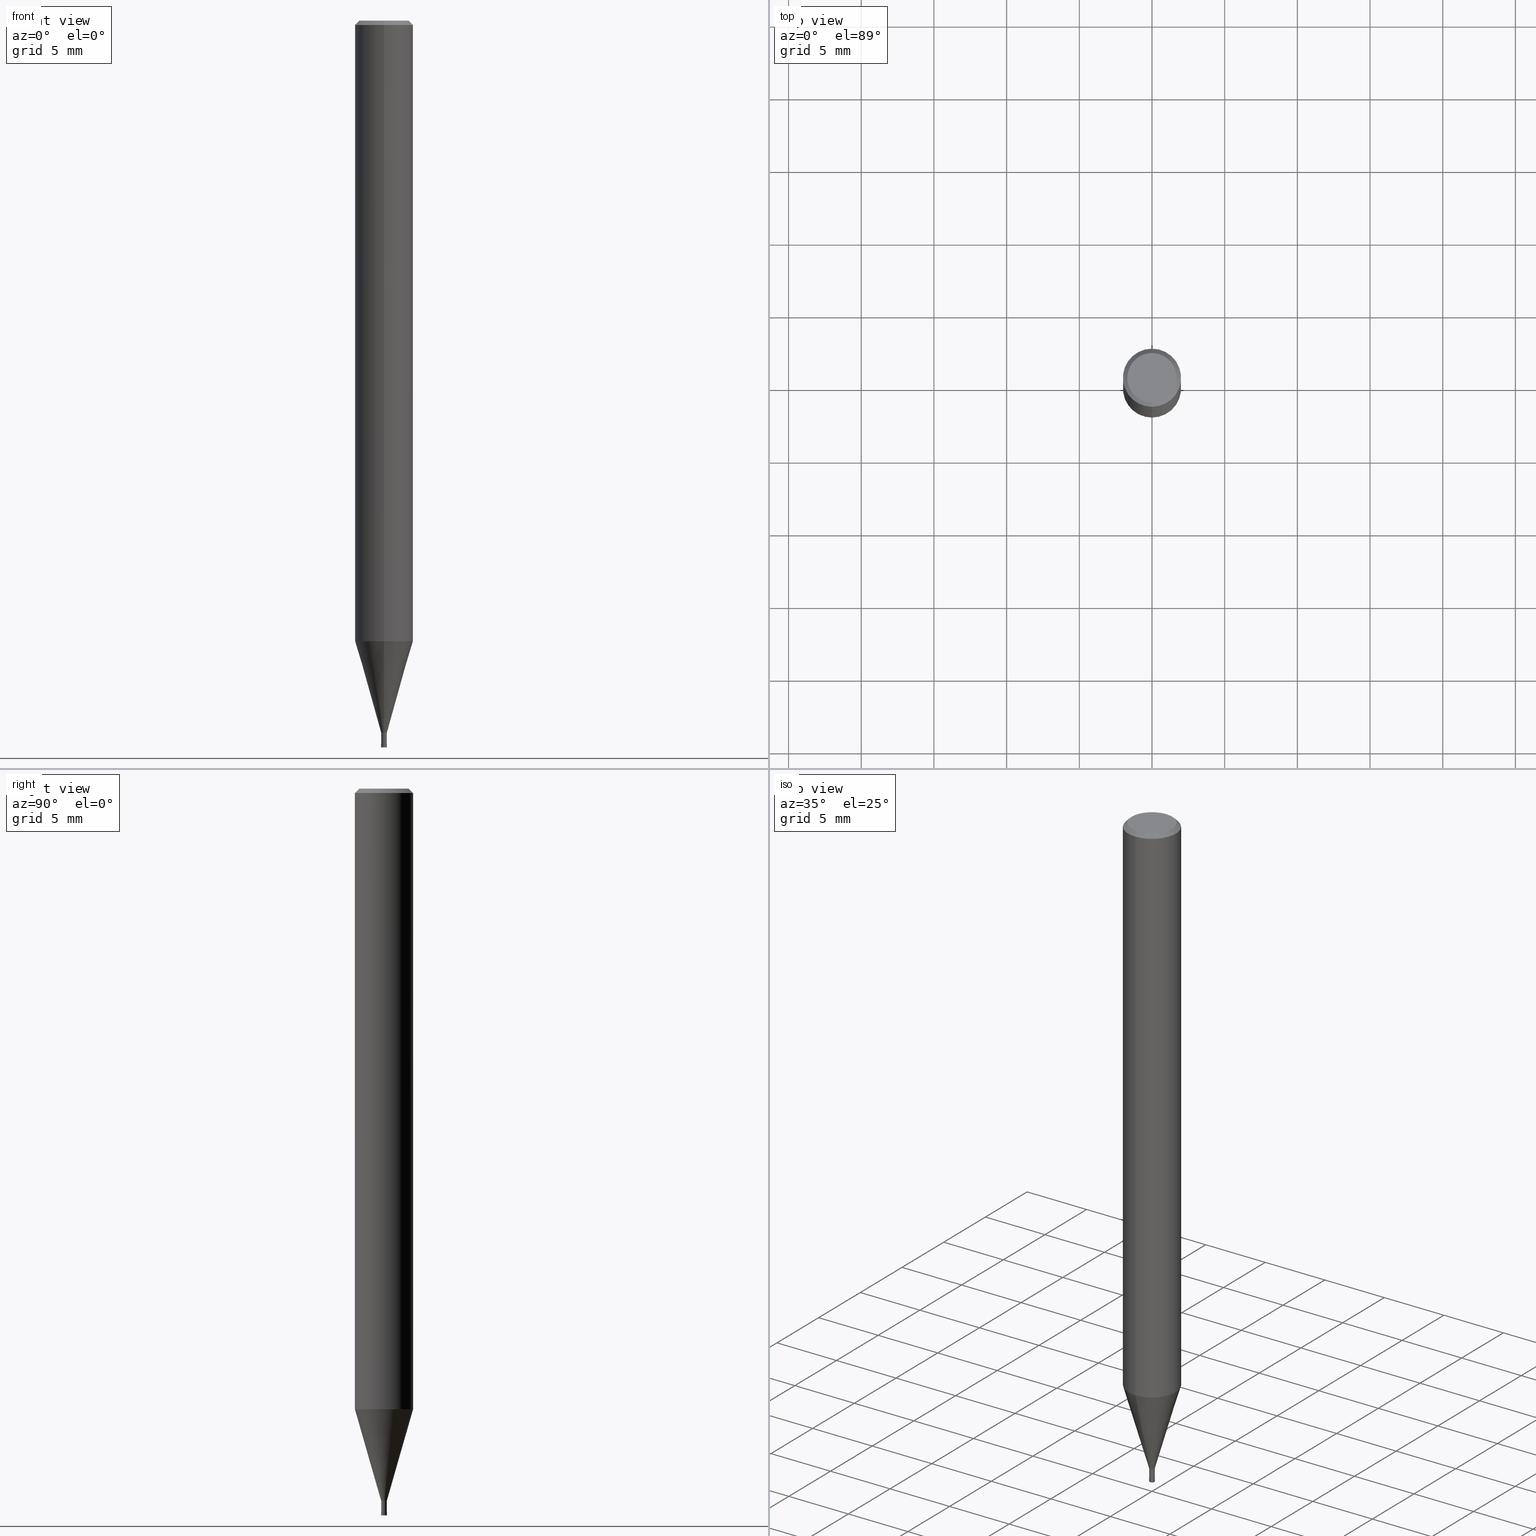
[diagram: canonical four-view strip — front | top / right | iso, engineering-drawing reading convention]
A machine part, canonical four-view strip (front | top / right | iso — engineering-drawing reading convention). The complete STEP part file that produces these views, byte-faithful:
ISO-10303-21;
HEADER;
FILE_DESCRIPTION(('no description'),'unknown implementation level');
FILE_NAME('HLRS4004-002-010-Huellk.stp','  ',('CIMSOURCE GmbH'),('CADClick - KiM GmbH - www.kimweb.de'),'unknown preprocess','ACIS','unknown authorization');
FILE_SCHEMA(('automotive_design'));
ENDSEC;
DATA;
#1=MECHANICAL_DESIGN_GEOMETRIC_PRESENTATION_REPRESENTATION(' ',(#14,#15,#16,#17,#18,#19,#20,#21,#22,#23,#24,#25,#26,#27,#28,#29,#30,#31,#32,#33,#34,#35,#36,#37,#38,#39,#40,#41,#42,#43,#44,#45,#46,#47,#48,#49,#50,#51,#52,#53,#54,#55,#56,#57,#58,#59,#60,#61,#62,#63,#64,#65,#66,#67,#68,#69,#70,#71,#72,#73,#74,#75,#76,#77,#78,#79,#80,#81,#82,#83,#84,#85,#86,#87,#88,#89,#90,#91,#92,#93,#94,#95,#96,#97,#98,#99,#100,#101,#102,#103,#104,#105,#106,#107,#108,#109,#110,#111,#112,#113,#114,#115,#116,#117,#118,#119,#120,#121),#10);
#2=PRODUCT_DEFINITION_CONTEXT('',#122,'design');
#3=APPLICATION_PROTOCOL_DEFINITION('INTERNATIONAL STANDARD','automotive_design',1994,#122);
#4=PRODUCT_CATEGORY_RELATIONSHIP('NONE','NONE',#123,#124);
#5=SHAPE_DEFINITION_REPRESENTATION(#125,#126);
#6=PRODUCT_DEFINITION_CONTEXT('',#127,'design');
#7=APPLICATION_PROTOCOL_DEFINITION('INTERNATIONAL STANDARD','automotive_design',1994,#127);
#8=PRODUCT_CATEGORY_RELATIONSHIP('NONE','NONE',#128,#129);
#9=SHAPE_DEFINITION_REPRESENTATION(#130,#131);
#10= (GEOMETRIC_REPRESENTATION_CONTEXT(3)GLOBAL_UNCERTAINTY_ASSIGNED_CONTEXT((#134))GLOBAL_UNIT_ASSIGNED_CONTEXT((#136,#137,#138))REPRESENTATION_CONTEXT('NONE','WORKSPACE'));
#14=STYLED_ITEM('',(#140),#141);
#15=STYLED_ITEM('',(#142),#143);
#16=STYLED_ITEM('',(#144),#145);
#17=STYLED_ITEM('',(#146),#147);
#18=STYLED_ITEM('',(#148),#149);
#19=STYLED_ITEM('',(#150),#151);
#20=STYLED_ITEM('',(#152),#153);
#21=STYLED_ITEM('',(#154),#155);
#22=STYLED_ITEM('',(#156),#157);
#23=STYLED_ITEM('',(#158),#159);
#24=STYLED_ITEM('',(#160),#161);
#25=STYLED_ITEM('',(#162),#163);
#26=STYLED_ITEM('',(#164),#165);
#27=STYLED_ITEM('',(#166),#167);
#28=STYLED_ITEM('',(#168),#169);
#29=STYLED_ITEM('',(#170),#171);
#30=STYLED_ITEM('',(#172),#173);
#31=STYLED_ITEM('',(#174),#175);
#32=STYLED_ITEM('',(#176),#177);
#33=STYLED_ITEM('',(#178),#179);
#34=STYLED_ITEM('',(#180),#181);
#35=STYLED_ITEM('',(#182),#183);
#36=STYLED_ITEM('',(#184),#185);
#37=STYLED_ITEM('',(#186),#187);
#38=STYLED_ITEM('',(#188),#189);
#39=STYLED_ITEM('',(#190),#191);
#40=STYLED_ITEM('',(#192),#193);
#41=STYLED_ITEM('',(#194),#195);
#42=STYLED_ITEM('',(#196),#197);
#43=STYLED_ITEM('',(#198),#199);
#44=STYLED_ITEM('',(#200),#201);
#45=STYLED_ITEM('',(#202),#203);
#46=STYLED_ITEM('',(#204),#205);
#47=STYLED_ITEM('',(#206),#207);
#48=STYLED_ITEM('',(#208),#209);
#49=STYLED_ITEM('',(#210),#211);
#50=STYLED_ITEM('',(#212),#213);
#51=STYLED_ITEM('',(#214),#215);
#52=STYLED_ITEM('',(#216),#217);
#53=STYLED_ITEM('',(#218),#219);
#54=STYLED_ITEM('',(#220),#221);
#55=STYLED_ITEM('',(#222),#223);
#56=STYLED_ITEM('',(#224),#225);
#57=STYLED_ITEM('',(#226),#227);
#58=STYLED_ITEM('',(#228),#229);
#59=STYLED_ITEM('',(#230),#231);
#60=STYLED_ITEM('',(#232),#233);
#61=STYLED_ITEM('',(#234),#235);
#62=STYLED_ITEM('',(#236),#237);
#63=STYLED_ITEM('',(#238),#239);
#64=STYLED_ITEM('',(#240),#241);
#65=STYLED_ITEM('',(#242),#243);
#66=STYLED_ITEM('',(#244),#245);
#67=STYLED_ITEM('',(#246),#247);
#68=STYLED_ITEM('',(#248),#249);
#69=STYLED_ITEM('',(#250),#251);
#70=STYLED_ITEM('',(#252),#253);
#71=STYLED_ITEM('',(#254),#255);
#72=STYLED_ITEM('',(#256),#257);
#73=STYLED_ITEM('',(#258),#259);
#74=STYLED_ITEM('',(#260),#261);
#75=STYLED_ITEM('',(#262),#263);
#76=STYLED_ITEM('',(#264),#265);
#77=STYLED_ITEM('',(#266),#267);
#78=STYLED_ITEM('',(#268),#269);
#79=STYLED_ITEM('',(#270),#271);
#80=STYLED_ITEM('',(#272),#273);
#81=STYLED_ITEM('',(#274),#275);
#82=STYLED_ITEM('',(#276),#277);
#83=STYLED_ITEM('',(#278),#279);
#84=STYLED_ITEM('',(#280),#281);
#85=STYLED_ITEM('',(#282),#283);
#86=STYLED_ITEM('',(#284),#285);
#87=STYLED_ITEM('',(#286),#287);
#88=STYLED_ITEM('',(#288),#289);
#89=STYLED_ITEM('',(#290),#291);
#90=STYLED_ITEM('',(#292),#293);
#91=STYLED_ITEM('',(#294),#295);
#92=STYLED_ITEM('',(#296),#297);
#93=STYLED_ITEM('',(#298),#299);
#94=STYLED_ITEM('',(#300),#301);
#95=STYLED_ITEM('',(#302),#303);
#96=STYLED_ITEM('',(#304),#305);
#97=STYLED_ITEM('',(#306),#307);
#98=STYLED_ITEM('',(#308),#309);
#99=STYLED_ITEM('',(#310),#311);
#100=STYLED_ITEM('',(#312),#313);
#101=STYLED_ITEM('',(#314),#315);
#102=STYLED_ITEM('',(#316),#317);
#103=STYLED_ITEM('',(#318),#319);
#104=STYLED_ITEM('',(#320),#321);
#105=STYLED_ITEM('',(#322),#323);
#106=STYLED_ITEM('',(#324),#325);
#107=STYLED_ITEM('',(#326),#327);
#108=STYLED_ITEM('',(#328),#329);
#109=STYLED_ITEM('',(#330),#331);
#110=STYLED_ITEM('',(#332),#333);
#111=STYLED_ITEM('',(#334),#335);
#112=STYLED_ITEM('',(#336),#337);
#113=STYLED_ITEM('',(#338),#339);
#114=STYLED_ITEM('',(#340),#341);
#115=STYLED_ITEM('',(#342),#343);
#116=STYLED_ITEM('',(#344),#345);
#117=STYLED_ITEM('',(#346),#347);
#118=STYLED_ITEM('',(#348),#349);
#119=STYLED_ITEM('',(#350),#351);
#120=STYLED_ITEM('',(#352),#353);
#121=STYLED_ITEM('',(#354),#355);
#122=APPLICATION_CONTEXT(' ');
#123=PRODUCT_CATEGORY('part','NONE');
#124=PRODUCT_RELATED_PRODUCT_CATEGORY('detail',' ',(#356));
#125=PRODUCT_DEFINITION_SHAPE('NONE','NONE',#357);
#126=ADVANCED_BREP_SHAPE_REPRESENTATION('1',(#249,#358),#10);
#127=APPLICATION_CONTEXT(' ');
#128=PRODUCT_CATEGORY('part','NONE');
#129=PRODUCT_RELATED_PRODUCT_CATEGORY('detail',' ',(#359));
#130=PRODUCT_DEFINITION_SHAPE('NONE','NONE',#360);
#131=ADVANCED_BREP_SHAPE_REPRESENTATION('2',(#145,#361),#10);
#134=UNCERTAINTY_MEASURE_WITH_UNIT(LENGTH_MEASURE(1.0E-006),#136,'','');
#136= (CONVERSION_BASED_UNIT('MILLIMETRE',#364)LENGTH_UNIT()NAMED_UNIT(#367));
#137= (NAMED_UNIT(#369)PLANE_ANGLE_UNIT()SI_UNIT($,.RADIAN.));
#138= (NAMED_UNIT(#369)SOLID_ANGLE_UNIT()SI_UNIT($,.STERADIAN.));
#140=PRESENTATION_STYLE_ASSIGNMENT((#375));
#141=EDGE_CURVE('',#157,#319,#376,.T.);
#142=PRESENTATION_STYLE_ASSIGNMENT((#377));
#143=EDGE_CURVE('',#327,#263,#378,.T.);
#144=PRESENTATION_STYLE_ASSIGNMENT((#379));
#145=MANIFOLD_SOLID_BREP('2',#380);
#146=PRESENTATION_STYLE_ASSIGNMENT((#381));
#147=EDGE_CURVE('',#319,#277,#382,.T.);
#148=PRESENTATION_STYLE_ASSIGNMENT((#383));
#149=ADVANCED_FACE('',(#384,#385),#386,.T.);
#150=PRESENTATION_STYLE_ASSIGNMENT((#387));
#151=EDGE_CURVE('',#269,#263,#388,.T.);
#152=PRESENTATION_STYLE_ASSIGNMENT((#389));
#153=EDGE_CURVE('',#183,#241,#390,.T.);
#154=PRESENTATION_STYLE_ASSIGNMENT((#391));
#155=ADVANCED_FACE('',(#392),#393,.T.);
#156=PRESENTATION_STYLE_ASSIGNMENT((#394));
#157=VERTEX_POINT('',#395);
#158=PRESENTATION_STYLE_ASSIGNMENT((#396));
#159=VERTEX_POINT('',#397);
#160=PRESENTATION_STYLE_ASSIGNMENT((#398));
#161=EDGE_CURVE('',#273,#325,#399,.T.);
#162=PRESENTATION_STYLE_ASSIGNMENT((#400));
#163=VERTEX_POINT('',#401);
#164=PRESENTATION_STYLE_ASSIGNMENT((#402));
#165=ADVANCED_FACE('',(#403),#404,.T.);
#166=PRESENTATION_STYLE_ASSIGNMENT((#405));
#167=EDGE_CURVE('',#229,#199,#406,.T.);
#168=PRESENTATION_STYLE_ASSIGNMENT((#407));
#169=EDGE_CURVE('',#307,#255,#408,.T.);
#170=PRESENTATION_STYLE_ASSIGNMENT((#409));
#171=ADVANCED_FACE('',(#410,#411),#412,.T.);
#172=PRESENTATION_STYLE_ASSIGNMENT((#413));
#173=ADVANCED_FACE('',(#414),#415,.T.);
#174=PRESENTATION_STYLE_ASSIGNMENT((#416));
#175=VERTEX_POINT('',#417);
#176=PRESENTATION_STYLE_ASSIGNMENT((#418));
#177=ADVANCED_FACE('',(#419),#420,.F.);
#178=PRESENTATION_STYLE_ASSIGNMENT((#421));
#179=EDGE_CURVE('',#315,#313,#422,.T.);
#180=PRESENTATION_STYLE_ASSIGNMENT((#423));
#181=EDGE_CURVE('',#163,#247,#424,.T.);
#182=PRESENTATION_STYLE_ASSIGNMENT((#425));
#183=VERTEX_POINT('',#426);
#184=PRESENTATION_STYLE_ASSIGNMENT((#427));
#185=VERTEX_POINT('',#428);
#186=PRESENTATION_STYLE_ASSIGNMENT((#429));
#187=EDGE_CURVE('',#175,#159,#430,.T.);
#188=PRESENTATION_STYLE_ASSIGNMENT((#431));
#189=ADVANCED_FACE('',(#432),#433,.T.);
#190=PRESENTATION_STYLE_ASSIGNMENT((#434));
#191=EDGE_CURVE('',#339,#277,#435,.T.);
#192=PRESENTATION_STYLE_ASSIGNMENT((#436));
#193=ADVANCED_FACE('',(#437),#438,.T.);
#194=PRESENTATION_STYLE_ASSIGNMENT((#439));
#195=EDGE_CURVE('',#325,#313,#440,.T.);
#196=PRESENTATION_STYLE_ASSIGNMENT((#441));
#197=VERTEX_POINT('',#442);
#198=PRESENTATION_STYLE_ASSIGNMENT((#443));
#199=VERTEX_POINT('',#444);
#200=PRESENTATION_STYLE_ASSIGNMENT((#445));
#201=ADVANCED_FACE('',(#446),#447,.T.);
#202=PRESENTATION_STYLE_ASSIGNMENT((#448));
#203=EDGE_CURVE('',#319,#157,#449,.T.);
#204=PRESENTATION_STYLE_ASSIGNMENT((#450));
#205=EDGE_CURVE('',#315,#273,#451,.T.);
#206=PRESENTATION_STYLE_ASSIGNMENT((#452));
#207=ADVANCED_FACE('',(#453),#454,.F.);
#208=PRESENTATION_STYLE_ASSIGNMENT((#455));
#209=EDGE_CURVE('',#339,#157,#456,.T.);
#210=PRESENTATION_STYLE_ASSIGNMENT((#457));
#211=EDGE_CURVE('',#297,#227,#458,.T.);
#212=PRESENTATION_STYLE_ASSIGNMENT((#459));
#213=EDGE_CURVE('',#325,#163,#460,.T.);
#214=PRESENTATION_STYLE_ASSIGNMENT((#461));
#215=EDGE_CURVE('',#277,#339,#462,.T.);
#216=PRESENTATION_STYLE_ASSIGNMENT((#463));
#217=ADVANCED_FACE('',(#464),#465,.T.);
#218=PRESENTATION_STYLE_ASSIGNMENT((#466));
#219=VERTEX_POINT('',#467);
#220=PRESENTATION_STYLE_ASSIGNMENT((#468));
#221=EDGE_CURVE('',#347,#261,#469,.T.);
#222=PRESENTATION_STYLE_ASSIGNMENT((#470));
#223=EDGE_CURVE('',#175,#219,#471,.T.);
#224=PRESENTATION_STYLE_ASSIGNMENT((#472));
#225=EDGE_CURVE('',#243,#269,#473,.T.);
#226=PRESENTATION_STYLE_ASSIGNMENT((#474));
#227=VERTEX_POINT('',#475);
#228=PRESENTATION_STYLE_ASSIGNMENT((#476));
#229=VERTEX_POINT('',#477);
#230=PRESENTATION_STYLE_ASSIGNMENT((#478));
#231=EDGE_CURVE('',#261,#307,#479,.T.);
#232=PRESENTATION_STYLE_ASSIGNMENT((#480));
#233=EDGE_CURVE('',#159,#175,#481,.T.);
#234=PRESENTATION_STYLE_ASSIGNMENT((#482));
#235=EDGE_CURVE('',#199,#229,#483,.T.);
#236=PRESENTATION_STYLE_ASSIGNMENT((#484));
#237=EDGE_CURVE('',#157,#183,#485,.T.);
#238=PRESENTATION_STYLE_ASSIGNMENT((#486));
#239=ADVANCED_FACE('',(#487,#488),#489,.T.);
#240=PRESENTATION_STYLE_ASSIGNMENT((#490));
#241=VERTEX_POINT('',#491);
#242=PRESENTATION_STYLE_ASSIGNMENT((#492));
#243=VERTEX_POINT('',#493);
#244=PRESENTATION_STYLE_ASSIGNMENT((#494));
#245=EDGE_CURVE('',#261,#347,#495,.T.);
#246=PRESENTATION_STYLE_ASSIGNMENT((#496));
#247=VERTEX_POINT('',#497);
#248=PRESENTATION_STYLE_ASSIGNMENT((#498));
#249=MANIFOLD_SOLID_BREP('1',#499);
#250=PRESENTATION_STYLE_ASSIGNMENT((#500));
#251=ADVANCED_FACE('',(#501),#502,.T.);
#252=PRESENTATION_STYLE_ASSIGNMENT((#503));
#253=ADVANCED_FACE('',(#504),#505,.T.);
#254=PRESENTATION_STYLE_ASSIGNMENT((#506));
#255=VERTEX_POINT('',#507);
#256=PRESENTATION_STYLE_ASSIGNMENT((#508));
#257=ADVANCED_FACE('',(#509),#510,.T.);
#258=PRESENTATION_STYLE_ASSIGNMENT((#511));
#259=EDGE_CURVE('',#229,#175,#512,.T.);
#260=PRESENTATION_STYLE_ASSIGNMENT((#513));
#261=VERTEX_POINT('',#514);
#262=PRESENTATION_STYLE_ASSIGNMENT((#515));
#263=VERTEX_POINT('',#516);
#264=PRESENTATION_STYLE_ASSIGNMENT((#517));
#265=EDGE_CURVE('',#313,#315,#518,.T.);
#266=PRESENTATION_STYLE_ASSIGNMENT((#519));
#267=ADVANCED_FACE('',(#520),#521,.T.);
#268=PRESENTATION_STYLE_ASSIGNMENT((#522));
#269=VERTEX_POINT('',#523);
#270=PRESENTATION_STYLE_ASSIGNMENT((#524));
#271=EDGE_CURVE('',#185,#159,#525,.T.);
#272=PRESENTATION_STYLE_ASSIGNMENT((#526));
#273=VERTEX_POINT('',#527);
#274=PRESENTATION_STYLE_ASSIGNMENT((#528));
#275=EDGE_CURVE('',#227,#327,#529,.T.);
#276=PRESENTATION_STYLE_ASSIGNMENT((#530));
#277=VERTEX_POINT('',#531);
#278=PRESENTATION_STYLE_ASSIGNMENT((#532));
#279=EDGE_CURVE('',#327,#243,#533,.T.);
#280=PRESENTATION_STYLE_ASSIGNMENT((#534));
#281=EDGE_CURVE('',#325,#273,#535,.T.);
#282=PRESENTATION_STYLE_ASSIGNMENT((#536));
#283=EDGE_CURVE('',#227,#297,#537,.T.);
#284=PRESENTATION_STYLE_ASSIGNMENT((#538));
#285=EDGE_CURVE('',#247,#273,#539,.T.);
#286=PRESENTATION_STYLE_ASSIGNMENT((#540));
#287=ADVANCED_FACE('',(#541),#542,.T.);
#288=PRESENTATION_STYLE_ASSIGNMENT((#543));
#289=ADVANCED_FACE('',(#544),#545,.T.);
#290=PRESENTATION_STYLE_ASSIGNMENT((#546));
#291=ADVANCED_FACE('',(#547),#548,.T.);
#292=PRESENTATION_STYLE_ASSIGNMENT((#549));
#293=ADVANCED_FACE('',(#550),#551,.F.);
#294=PRESENTATION_STYLE_ASSIGNMENT((#552));
#295=EDGE_CURVE('',#263,#327,#553,.T.);
#296=PRESENTATION_STYLE_ASSIGNMENT((#554));
#297=VERTEX_POINT('',#555);
#298=PRESENTATION_STYLE_ASSIGNMENT((#556));
#299=EDGE_CURVE('',#255,#307,#557,.T.);
#300=PRESENTATION_STYLE_ASSIGNMENT((#558));
#301=EDGE_CURVE('',#269,#243,#559,.T.);
#302=PRESENTATION_STYLE_ASSIGNMENT((#560));
#303=ADVANCED_FACE('',(#561),#562,.T.);
#304=PRESENTATION_STYLE_ASSIGNMENT((#563));
#305=EDGE_CURVE('',#255,#347,#564,.T.);
#306=PRESENTATION_STYLE_ASSIGNMENT((#565));
#307=VERTEX_POINT('',#566);
#308=PRESENTATION_STYLE_ASSIGNMENT((#567));
#309=EDGE_CURVE('',#307,#349,#568,.T.);
#310=PRESENTATION_STYLE_ASSIGNMENT((#569));
#311=EDGE_CURVE('',#349,#197,#570,.T.);
#312=PRESENTATION_STYLE_ASSIGNMENT((#571));
#313=VERTEX_POINT('',#572);
#314=PRESENTATION_STYLE_ASSIGNMENT((#573));
#315=VERTEX_POINT('',#574);
#316=PRESENTATION_STYLE_ASSIGNMENT((#575));
#317=ADVANCED_FACE('',(#576),#577,.F.);
#318=PRESENTATION_STYLE_ASSIGNMENT((#578));
#319=VERTEX_POINT('',#579);
#320=PRESENTATION_STYLE_ASSIGNMENT((#580));
#321=EDGE_CURVE('',#247,#163,#581,.T.);
#322=PRESENTATION_STYLE_ASSIGNMENT((#582));
#323=EDGE_CURVE('',#263,#297,#583,.T.);
#324=PRESENTATION_STYLE_ASSIGNMENT((#584));
#325=VERTEX_POINT('',#585);
#326=PRESENTATION_STYLE_ASSIGNMENT((#586));
#327=VERTEX_POINT('',#587);
#328=PRESENTATION_STYLE_ASSIGNMENT((#588));
#329=EDGE_CURVE('',#197,#349,#589,.T.);
#330=PRESENTATION_STYLE_ASSIGNMENT((#590));
#331=EDGE_CURVE('',#159,#199,#591,.T.);
#332=PRESENTATION_STYLE_ASSIGNMENT((#592));
#333=EDGE_CURVE('',#185,#219,#593,.T.);
#334=PRESENTATION_STYLE_ASSIGNMENT((#594));
#335=ADVANCED_FACE('',(#595),#596,.T.);
#336=PRESENTATION_STYLE_ASSIGNMENT((#597));
#337=EDGE_CURVE('',#197,#255,#598,.T.);
#338=PRESENTATION_STYLE_ASSIGNMENT((#599));
#339=VERTEX_POINT('',#600);
#340=PRESENTATION_STYLE_ASSIGNMENT((#601));
#341=ADVANCED_FACE('',(#602),#603,.T.);
#342=PRESENTATION_STYLE_ASSIGNMENT((#604));
#343=EDGE_CURVE('',#219,#185,#605,.T.);
#344=PRESENTATION_STYLE_ASSIGNMENT((#606));
#345=ADVANCED_FACE('',(#607),#608,.T.);
#346=PRESENTATION_STYLE_ASSIGNMENT((#609));
#347=VERTEX_POINT('',#610);
#348=PRESENTATION_STYLE_ASSIGNMENT((#611));
#349=VERTEX_POINT('',#612);
#350=PRESENTATION_STYLE_ASSIGNMENT((#613));
#351=EDGE_CURVE('',#241,#319,#614,.T.);
#352=PRESENTATION_STYLE_ASSIGNMENT((#615));
#353=ADVANCED_FACE('',(#616,#617),#618,.T.);
#354=PRESENTATION_STYLE_ASSIGNMENT((#619));
#355=EDGE_CURVE('',#241,#183,#620,.T.);
#356=PRODUCT('1','1','PART-1-DESC',(#621));
#357=PRODUCT_DEFINITION('NONE','NONE',#622,#2);
#358=AXIS2_PLACEMENT_3D('',#623,#624,#625);
#359=PRODUCT('2','2','PART-2-DESC',(#626));
#360=PRODUCT_DEFINITION('NONE','NONE',#627,#6);
#361=AXIS2_PLACEMENT_3D('',#628,#629,#630);
#364=LENGTH_MEASURE_WITH_UNIT(LENGTH_MEASURE(1.0),#631);
#367=DIMENSIONAL_EXPONENTS(1.0,0.0,0.0,0.0,0.0,0.0,0.0);
#369=DIMENSIONAL_EXPONENTS(0.0,0.0,0.0,0.0,0.0,0.0,0.0);
#375=CURVE_STYLE('',#632,POSITIVE_LENGTH_MEASURE(1.0E-006),#633);
#376=CIRCLE('',#634,0.09);
#377=CURVE_STYLE('',#635,POSITIVE_LENGTH_MEASURE(1.0E-006),#636);
#378=CIRCLE('',#637,0.19245);
#379=SURFACE_STYLE_USAGE(.BOTH.,#638);
#380=CLOSED_SHELL('',(#207,#189,#341,#317,#293,#149,#345,#217,#353,#177));
#381=CURVE_STYLE('',#639,POSITIVE_LENGTH_MEASURE(1.0E-006),#640);
#382=LINE('',#641,#642);
#383=SURFACE_STYLE_USAGE(.BOTH.,#643);
#384=FACE_OUTER_BOUND('',#644,.T.);
#385=FACE_BOUND('',#645,.T.);
#386=PLANE('',#646);
#387=CURVE_STYLE('',#647,POSITIVE_LENGTH_MEASURE(1.0E-006),#648);
#388=LINE('',#649,#650);
#389=CURVE_STYLE('',#651,POSITIVE_LENGTH_MEASURE(1.0E-006),#652);
#390=CIRCLE('',#653,0.09);
#391=SURFACE_STYLE_USAGE(.BOTH.,#654);
#392=FACE_OUTER_BOUND('',#655,.T.);
#393=CONICAL_SURFACE('',#656,1.85,0.785398163397453);
#394=POINT_STYLE(' ',#657,POSITIVE_LENGTH_MEASURE(1.0E-006),#658);
#395=CARTESIAN_POINT('',(0.0,0.09,-49.76));
#396=POINT_STYLE(' ',#659,POSITIVE_LENGTH_MEASURE(1.0E-006),#660);
#397=CARTESIAN_POINT('',(1.10214571844014E-017,-0.09,-49.76));
#398=CURVE_STYLE('',#661,POSITIVE_LENGTH_MEASURE(1.0E-006),#662);
#399=CIRCLE('',#663,0.2);
#400=POINT_STYLE(' ',#664,POSITIVE_LENGTH_MEASURE(1.0E-006),#665);
#401=CARTESIAN_POINT('',(2.20429143688028E-017,-0.18,-49.99));
#402=SURFACE_STYLE_USAGE(.BOTH.,#666);
#403=FACE_OUTER_BOUND('',#667,.T.);
#404=CYLINDRICAL_SURFACE('',#668,2.0);
#405=CURVE_STYLE('',#669,POSITIVE_LENGTH_MEASURE(1.0E-006),#670);
#406=CIRCLE('',#671,0.1949);
#407=CURVE_STYLE('',#672,POSITIVE_LENGTH_MEASURE(1.0E-006),#673);
#408=CIRCLE('',#674,2.0);
#409=SURFACE_STYLE_USAGE(.BOTH.,#675);
#410=FACE_OUTER_BOUND('',#676,.T.);
#411=FACE_BOUND('',#677,.T.);
#412=PLANE('',#678);
#413=SURFACE_STYLE_USAGE(.BOTH.,#679);
#414=FACE_OUTER_BOUND('',#680,.T.);
#415=CONICAL_SURFACE('',#681,1.0962,0.279231732547063);
#416=POINT_STYLE(' ',#682,POSITIVE_LENGTH_MEASURE(1.0E-006),#683);
#417=CARTESIAN_POINT('',(0.0,0.09,-49.76));
#418=SURFACE_STYLE_USAGE(.BOTH.,#684);
#419=FACE_OUTER_BOUND('',#685,.T.);
#420=CYLINDRICAL_SURFACE('',#686,0.09);
#421=CURVE_STYLE('',#687,POSITIVE_LENGTH_MEASURE(1.0E-006),#688);
#422=CIRCLE('',#689,0.1999);
#423=CURVE_STYLE('',#690,POSITIVE_LENGTH_MEASURE(1.0E-006),#691);
#424=CIRCLE('',#692,0.18);
#425=POINT_STYLE(' ',#693,POSITIVE_LENGTH_MEASURE(1.0E-006),#694);
#426=CARTESIAN_POINT('',(0.0,0.09,-49.93));
#427=POINT_STYLE(' ',#695,POSITIVE_LENGTH_MEASURE(1.0E-006),#696);
#428=CARTESIAN_POINT('',(1.10214571844014E-017,-0.09,-49.99));
#429=CURVE_STYLE('',#697,POSITIVE_LENGTH_MEASURE(1.0E-006),#698);
#430=CIRCLE('',#699,0.09);
#431=SURFACE_STYLE_USAGE(.BOTH.,#700);
#432=FACE_OUTER_BOUND('',#701,.T.);
#433=TOROIDAL_SURFACE('',#702,0.18,0.0199999999999999);
#434=CURVE_STYLE('',#703,POSITIVE_LENGTH_MEASURE(1.0E-006),#704);
#435=CIRCLE('',#705,0.19495);
#436=SURFACE_STYLE_USAGE(.BOTH.,#706);
#437=FACE_OUTER_BOUND('',#707,.T.);
#438=PLANE('',#708);
#439=CURVE_STYLE('',#709,POSITIVE_LENGTH_MEASURE(1.0E-006),#710);
#440=LINE('',#711,#712);
#441=POINT_STYLE(' ',#713,POSITIVE_LENGTH_MEASURE(1.0E-006),#714);
#442=CARTESIAN_POINT('',(2.44921270764475E-016,-2.0,-42.686));
#443=POINT_STYLE(' ',#715,POSITIVE_LENGTH_MEASURE(1.0E-006),#716);
#444=CARTESIAN_POINT('',(2.38675778359981E-017,-0.1949,-49.75));
#445=SURFACE_STYLE_USAGE(.BOTH.,#717);
#446=FACE_OUTER_BOUND('',#718,.T.);
#447=CONICAL_SURFACE('',#719,0.142475,1.47579965541249);
#448=CURVE_STYLE('',#720,POSITIVE_LENGTH_MEASURE(1.0E-006),#721);
#449=CIRCLE('',#722,0.09);
#450=CURVE_STYLE('',#723,POSITIVE_LENGTH_MEASURE(1.0E-006),#724);
#451=LINE('',#725,#726);
#452=SURFACE_STYLE_USAGE(.BOTH.,#727);
#453=FACE_OUTER_BOUND('',#728,.T.);
#454=CYLINDRICAL_SURFACE('',#729,0.09);
#455=CURVE_STYLE('',#730,POSITIVE_LENGTH_MEASURE(1.0E-006),#731);
#456=LINE('',#732,#733);
#457=CURVE_STYLE('',#734,POSITIVE_LENGTH_MEASURE(1.0E-006),#735);
#458=CIRCLE('',#736,1.99995);
#459=CURVE_STYLE('',#737,POSITIVE_LENGTH_MEASURE(1.0E-006),#738);
#460=CIRCLE('',#739,0.0199999999999999);
#461=CURVE_STYLE('',#740,POSITIVE_LENGTH_MEASURE(1.0E-006),#741);
#462=CIRCLE('',#742,0.19495);
#463=SURFACE_STYLE_USAGE(.BOTH.,#743);
#464=FACE_OUTER_BOUND('',#744,.T.);
#465=TOROIDAL_SURFACE('',#745,0.18,0.0199999999999999);
#466=POINT_STYLE(' ',#746,POSITIVE_LENGTH_MEASURE(1.0E-006),#747);
#467=CARTESIAN_POINT('',(0.0,0.09,-49.99));
#468=CURVE_STYLE('',#748,POSITIVE_LENGTH_MEASURE(1.0E-006),#749);
#469=CIRCLE('',#750,1.7);
#470=CURVE_STYLE('',#751,POSITIVE_LENGTH_MEASURE(1.0E-006),#752);
#471=LINE('',#753,#754);
#472=CURVE_STYLE('',#755,POSITIVE_LENGTH_MEASURE(1.0E-006),#756);
#473=CIRCLE('',#757,0.19245);
#474=POINT_STYLE(' ',#758,POSITIVE_LENGTH_MEASURE(1.0E-006),#759);
#475=CARTESIAN_POINT('',(0.0,1.99995,-42.686));
#476=POINT_STYLE(' ',#760,POSITIVE_LENGTH_MEASURE(1.0E-006),#761);
#477=CARTESIAN_POINT('',(0.0,0.1949,-49.75));
#478=CURVE_STYLE('',#762,POSITIVE_LENGTH_MEASURE(1.0E-006),#763);
#479=LINE('',#764,#765);
#480=CURVE_STYLE('',#766,POSITIVE_LENGTH_MEASURE(1.0E-006),#767);
#481=CIRCLE('',#768,0.09);
#482=CURVE_STYLE('',#769,POSITIVE_LENGTH_MEASURE(1.0E-006),#770);
#483=CIRCLE('',#771,0.1949);
#484=CURVE_STYLE('',#772,POSITIVE_LENGTH_MEASURE(1.0E-006),#773);
#485=LINE('',#774,#775);
#486=SURFACE_STYLE_USAGE(.BOTH.,#776);
#487=FACE_OUTER_BOUND('',#777,.T.);
#488=FACE_BOUND('',#778,.T.);
#489=PLANE('',#779);
#490=POINT_STYLE(' ',#780,POSITIVE_LENGTH_MEASURE(1.0E-006),#781);
#491=CARTESIAN_POINT('',(1.10214571844014E-017,-0.09,-49.93));
#492=POINT_STYLE(' ',#782,POSITIVE_LENGTH_MEASURE(1.0E-006),#783);
#493=CARTESIAN_POINT('',(0.0,0.19245,-49.75));
#494=CURVE_STYLE('',#784,POSITIVE_LENGTH_MEASURE(1.0E-006),#785);
#495=CIRCLE('',#786,1.7);
#496=POINT_STYLE(' ',#787,POSITIVE_LENGTH_MEASURE(1.0E-006),#788);
#497=CARTESIAN_POINT('',(0.0,0.18,-49.99));
#498=SURFACE_STYLE_USAGE(.BOTH.,#789);
#499=CLOSED_SHELL('',(#267,#201,#257,#173,#289,#291,#239,#335,#155,#165,#287,#251,#171,#253,#303,#193));
#500=SURFACE_STYLE_USAGE(.BOTH.,#790);
#501=FACE_OUTER_BOUND('',#791,.T.);
#502=CYLINDRICAL_SURFACE('',#792,0.19245);
#503=SURFACE_STYLE_USAGE(.BOTH.,#793);
#504=FACE_OUTER_BOUND('',#794,.T.);
#505=CONICAL_SURFACE('',#795,0.142475,1.47579965541249);
#506=POINT_STYLE(' ',#796,POSITIVE_LENGTH_MEASURE(1.0E-006),#797);
#507=CARTESIAN_POINT('',(2.44921270764475E-016,-2.0,-0.289999999999999));
#508=SURFACE_STYLE_USAGE(.BOTH.,#798);
#509=FACE_OUTER_BOUND('',#799,.T.);
#510=CYLINDRICAL_SURFACE('',#800,0.19245);
#511=CURVE_STYLE('',#801,POSITIVE_LENGTH_MEASURE(1.0E-006),#802);
#512=LINE('',#803,#804);
#513=POINT_STYLE(' ',#805,POSITIVE_LENGTH_MEASURE(1.0E-006),#806);
#514=CARTESIAN_POINT('',(0.0,1.7,0.00999999999999801));
#515=POINT_STYLE(' ',#807,POSITIVE_LENGTH_MEASURE(1.0E-006),#808);
#516=CARTESIAN_POINT('',(2.35675492793117E-017,-0.19245,-48.99));
#517=CURVE_STYLE('',#809,POSITIVE_LENGTH_MEASURE(1.0E-006),#810);
#518=CIRCLE('',#811,0.1999);
#519=SURFACE_STYLE_USAGE(.BOTH.,#812);
#520=FACE_OUTER_BOUND('',#813,.T.);
#521=CYLINDRICAL_SURFACE('',#814,0.09);
#522=POINT_STYLE(' ',#815,POSITIVE_LENGTH_MEASURE(1.0E-006),#816);
#523=CARTESIAN_POINT('',(2.35675492793117E-017,-0.19245,-49.75));
#524=CURVE_STYLE('',#817,POSITIVE_LENGTH_MEASURE(1.0E-006),#818);
#525=LINE('',#819,#820);
#526=POINT_STYLE(' ',#821,POSITIVE_LENGTH_MEASURE(1.0E-006),#822);
#527=CARTESIAN_POINT('',(0.0,0.2,-49.97));
#528=CURVE_STYLE('',#823,POSITIVE_LENGTH_MEASURE(1.0E-006),#824);
#529=LINE('',#825,#826);
#530=POINT_STYLE(' ',#827,POSITIVE_LENGTH_MEASURE(1.0E-006),#828);
#531=CARTESIAN_POINT('',(2.38737008677672E-017,-0.19495,-49.75));
#532=CURVE_STYLE('',#829,POSITIVE_LENGTH_MEASURE(1.0E-006),#830);
#533=LINE('',#831,#832);
#534=CURVE_STYLE('',#833,POSITIVE_LENGTH_MEASURE(1.0E-006),#834);
#535=CIRCLE('',#835,0.2);
#536=CURVE_STYLE('',#836,POSITIVE_LENGTH_MEASURE(1.0E-006),#837);
#537=CIRCLE('',#838,1.99995);
#538=CURVE_STYLE('',#839,POSITIVE_LENGTH_MEASURE(1.0E-006),#840);
#539=CIRCLE('',#841,0.0199999999999999);
#540=SURFACE_STYLE_USAGE(.BOTH.,#842);
#541=FACE_OUTER_BOUND('',#843,.T.);
#542=CONICAL_SURFACE('',#844,1.0962,0.279231732547063);
#543=SURFACE_STYLE_USAGE(.BOTH.,#845);
#544=FACE_OUTER_BOUND('',#846,.T.);
#545=CYLINDRICAL_SURFACE('',#847,2.0);
#546=SURFACE_STYLE_USAGE(.BOTH.,#848);
#547=FACE_OUTER_BOUND('',#849,.T.);
#548=CONICAL_SURFACE('',#850,1.85,0.785398163397453);
#549=SURFACE_STYLE_USAGE(.BOTH.,#851);
#550=FACE_OUTER_BOUND('',#852,.T.);
#551=CONICAL_SURFACE('',#853,0.14245,1.47575464789401);
#552=CURVE_STYLE('',#854,POSITIVE_LENGTH_MEASURE(1.0E-006),#855);
#553=CIRCLE('',#856,0.19245);
#554=POINT_STYLE(' ',#857,POSITIVE_LENGTH_MEASURE(1.0E-006),#858);
#555=CARTESIAN_POINT('',(2.44915147732706E-016,-1.99995,-42.686));
#556=CURVE_STYLE('',#859,POSITIVE_LENGTH_MEASURE(1.0E-006),#860);
#557=CIRCLE('',#861,2.0);
#558=CURVE_STYLE('',#862,POSITIVE_LENGTH_MEASURE(1.0E-006),#863);
#559=CIRCLE('',#864,0.19245);
#560=SURFACE_STYLE_USAGE(.BOTH.,#865);
#561=FACE_OUTER_BOUND('',#866,.T.);
#562=CYLINDRICAL_SURFACE('',#867,0.09);
#563=CURVE_STYLE('',#868,POSITIVE_LENGTH_MEASURE(1.0E-006),#869);
#564=LINE('',#870,#871);
#565=POINT_STYLE(' ',#872,POSITIVE_LENGTH_MEASURE(1.0E-006),#873);
#566=CARTESIAN_POINT('',(0.0,2.0,-0.289999999999999));
#567=CURVE_STYLE('',#874,POSITIVE_LENGTH_MEASURE(1.0E-006),#875);
#568=LINE('',#876,#877);
#569=CURVE_STYLE('',#878,POSITIVE_LENGTH_MEASURE(1.0E-006),#879);
#570=CIRCLE('',#880,2.0);
#571=POINT_STYLE(' ',#881,POSITIVE_LENGTH_MEASURE(1.0E-006),#882);
#572=CARTESIAN_POINT('',(2.44798810129093E-017,-0.1999,-49.75));
#573=POINT_STYLE(' ',#883,POSITIVE_LENGTH_MEASURE(1.0E-006),#884);
#574=CARTESIAN_POINT('',(0.0,0.1999,-49.75));
#575=SURFACE_STYLE_USAGE(.BOTH.,#885);
#576=FACE_OUTER_BOUND('',#886,.T.);
#577=CONICAL_SURFACE('',#887,0.14245,1.47575464789401);
#578=POINT_STYLE(' ',#888,POSITIVE_LENGTH_MEASURE(1.0E-006),#889);
#579=CARTESIAN_POINT('',(1.10214571844014E-017,-0.09,-49.76));
#580=CURVE_STYLE('',#890,POSITIVE_LENGTH_MEASURE(1.0E-006),#891);
#581=CIRCLE('',#892,0.18);
#582=CURVE_STYLE('',#893,POSITIVE_LENGTH_MEASURE(1.0E-006),#894);
#583=LINE('',#895,#896);
#584=POINT_STYLE(' ',#897,POSITIVE_LENGTH_MEASURE(1.0E-006),#898);
#585=CARTESIAN_POINT('',(2.44921270764475E-017,-0.2,-49.97));
#586=POINT_STYLE(' ',#899,POSITIVE_LENGTH_MEASURE(1.0E-006),#900);
#587=CARTESIAN_POINT('',(0.0,0.19245,-48.99));
#588=CURVE_STYLE('',#901,POSITIVE_LENGTH_MEASURE(1.0E-006),#902);
#589=CIRCLE('',#903,2.0);
#590=CURVE_STYLE('',#904,POSITIVE_LENGTH_MEASURE(1.0E-006),#905);
#591=LINE('',#906,#907);
#592=CURVE_STYLE('',#908,POSITIVE_LENGTH_MEASURE(1.0E-006),#909);
#593=CIRCLE('',#910,0.09);
#594=SURFACE_STYLE_USAGE(.BOTH.,#911);
#595=FACE_OUTER_BOUND('',#912,.T.);
#596=PLANE('',#913);
#597=CURVE_STYLE('',#914,POSITIVE_LENGTH_MEASURE(1.0E-006),#915);
#598=LINE('',#916,#917);
#599=POINT_STYLE(' ',#918,POSITIVE_LENGTH_MEASURE(1.0E-006),#919);
#600=CARTESIAN_POINT('',(0.0,0.19495,-49.75));
#601=SURFACE_STYLE_USAGE(.BOTH.,#920);
#602=FACE_OUTER_BOUND('',#921,.T.);
#603=CONICAL_SURFACE('',#922,0.19995,0.000454545423240751);
#604=CURVE_STYLE('',#923,POSITIVE_LENGTH_MEASURE(1.0E-006),#924);
#605=CIRCLE('',#925,0.09);
#606=SURFACE_STYLE_USAGE(.BOTH.,#926);
#607=FACE_OUTER_BOUND('',#927,.T.);
#608=CONICAL_SURFACE('',#928,0.19995,0.000454545423240751);
#609=POINT_STYLE(' ',#929,POSITIVE_LENGTH_MEASURE(1.0E-006),#930);
#610=CARTESIAN_POINT('',(2.08183080149804E-016,-1.7,0.00999999999999801));
#611=POINT_STYLE(' ',#931,POSITIVE_LENGTH_MEASURE(1.0E-006),#932);
#612=CARTESIAN_POINT('',(0.0,2.0,-42.686));
#613=CURVE_STYLE('',#933,POSITIVE_LENGTH_MEASURE(1.0E-006),#934);
#614=LINE('',#935,#936);
#615=SURFACE_STYLE_USAGE(.BOTH.,#937);
#616=FACE_BOUND('',#938,.T.);
#617=FACE_OUTER_BOUND('',#939,.T.);
#618=PLANE('',#940);
#619=CURVE_STYLE('',#941,POSITIVE_LENGTH_MEASURE(1.0E-006),#942);
#620=CIRCLE('',#943,0.09);
#621=PRODUCT_CONTEXT('',#122,'mechanical');
#622=PRODUCT_DEFINITION_FORMATION_WITH_SPECIFIED_SOURCE(' ','NONE',#356,.NOT_KNOWN.);
#623=CARTESIAN_POINT('',(0.0,0.0,0.0));
#624=DIRECTION('',(0.0,0.0,1.0));
#625=DIRECTION('',(1.0,0.0,0.0));
#626=PRODUCT_CONTEXT('',#127,'mechanical');
#627=PRODUCT_DEFINITION_FORMATION_WITH_SPECIFIED_SOURCE(' ','NONE',#359,.NOT_KNOWN.);
#628=CARTESIAN_POINT('',(0.0,0.0,0.0));
#629=DIRECTION('',(0.0,0.0,1.0));
#630=DIRECTION('',(1.0,0.0,0.0));
#631= (NAMED_UNIT(#367)LENGTH_UNIT()SI_UNIT(.MILLI.,.METRE.));
#632=DRAUGHTING_PRE_DEFINED_CURVE_FONT('continuous');
#633=COLOUR_RGB('',0.498039215803146,0.498039215803146,0.498039215803146);
#634=AXIS2_PLACEMENT_3D('',#945,#946,#947);
#635=DRAUGHTING_PRE_DEFINED_CURVE_FONT('continuous');
#636=COLOUR_RGB('',0.498039215803146,0.498039215803146,0.498039215803146);
#637=AXIS2_PLACEMENT_3D('',#948,#949,#950);
#638=SURFACE_SIDE_STYLE('',(#951));
#639=DRAUGHTING_PRE_DEFINED_CURVE_FONT('continuous');
#640=COLOUR_RGB('',0.498039215803146,0.498039215803146,0.498039215803146);
#641=CARTESIAN_POINT('',(1.74475790260843E-017,-0.142475,-49.755));
#642=VECTOR('',#952,1.0);
#643=SURFACE_SIDE_STYLE('',(#953));
#644=EDGE_LOOP('',(#954,#955));
#645=EDGE_LOOP('',(#956,#957));
#646=AXIS2_PLACEMENT_3D('',#958,#959,#960);
#647=DRAUGHTING_PRE_DEFINED_CURVE_FONT('continuous');
#648=COLOUR_RGB('',0.498039215803146,0.498039215803146,0.498039215803146);
#649=CARTESIAN_POINT('',(2.35675492793117E-017,-0.19245,-49.37));
#650=VECTOR('',#961,1.0);
#651=DRAUGHTING_PRE_DEFINED_CURVE_FONT('continuous');
#652=COLOUR_RGB('',0.498039215803146,0.498039215803146,0.498039215803146);
#653=AXIS2_PLACEMENT_3D('',#962,#963,#964);
#654=SURFACE_SIDE_STYLE('',(#965));
#655=EDGE_LOOP('',(#966,#967,#968,#969));
#656=AXIS2_PLACEMENT_3D('',#970,#971,#972);
#657=PRE_DEFINED_MARKER('');
#658=COLOUR_RGB('',0.498039215803146,0.498039215803146,0.498039215803146);
#659=PRE_DEFINED_MARKER('');
#660=COLOUR_RGB('',0.800000011920929,0.800000011920929,0.800000011920929);
#661=DRAUGHTING_PRE_DEFINED_CURVE_FONT('continuous');
#662=COLOUR_RGB('',0.800000011920929,0.800000011920929,0.800000011920929);
#663=AXIS2_PLACEMENT_3D('',#973,#974,#975);
#664=PRE_DEFINED_MARKER('');
#665=COLOUR_RGB('',0.800000011920929,0.800000011920929,0.800000011920929);
#666=SURFACE_SIDE_STYLE('',(#976));
#667=EDGE_LOOP('',(#977,#978,#979,#980));
#668=AXIS2_PLACEMENT_3D('',#981,#982,#983);
#669=DRAUGHTING_PRE_DEFINED_CURVE_FONT('continuous');
#670=COLOUR_RGB('',0.800000011920929,0.800000011920929,0.800000011920929);
#671=AXIS2_PLACEMENT_3D('',#984,#985,#986);
#672=DRAUGHTING_PRE_DEFINED_CURVE_FONT('continuous');
#673=COLOUR_RGB('',0.498039215803146,0.498039215803146,0.498039215803146);
#674=AXIS2_PLACEMENT_3D('',#987,#988,#989);
#675=SURFACE_SIDE_STYLE('',(#990));
#676=EDGE_LOOP('',(#991,#992));
#677=EDGE_LOOP('',(#993,#994));
#678=AXIS2_PLACEMENT_3D('',#995,#996,#997);
#679=SURFACE_SIDE_STYLE('',(#998));
#680=EDGE_LOOP('',(#999,#1000,#1001,#1002));
#681=AXIS2_PLACEMENT_3D('',#1003,#1004,#1005);
#682=PRE_DEFINED_MARKER('');
#683=COLOUR_RGB('',0.800000011920929,0.800000011920929,0.800000011920929);
#684=SURFACE_SIDE_STYLE('',(#1006));
#685=EDGE_LOOP('',(#1007,#1008,#1009,#1010));
#686=AXIS2_PLACEMENT_3D('',#1011,#1012,#1013);
#687=DRAUGHTING_PRE_DEFINED_CURVE_FONT('continuous');
#688=COLOUR_RGB('',0.800000011920929,0.800000011920929,0.800000011920929);
#689=AXIS2_PLACEMENT_3D('',#1014,#1015,#1016);
#690=DRAUGHTING_PRE_DEFINED_CURVE_FONT('continuous');
#691=COLOUR_RGB('',0.800000011920929,0.800000011920929,0.800000011920929);
#692=AXIS2_PLACEMENT_3D('',#1017,#1018,#1019);
#693=PRE_DEFINED_MARKER('');
#694=COLOUR_RGB('',0.498039215803146,0.498039215803146,0.498039215803146);
#695=PRE_DEFINED_MARKER('');
#696=COLOUR_RGB('',0.800000011920929,0.800000011920929,0.800000011920929);
#697=DRAUGHTING_PRE_DEFINED_CURVE_FONT('continuous');
#698=COLOUR_RGB('',0.800000011920929,0.800000011920929,0.800000011920929);
#699=AXIS2_PLACEMENT_3D('',#1020,#1021,#1022);
#700=SURFACE_SIDE_STYLE('',(#1023));
#701=EDGE_LOOP('',(#1024,#1025,#1026,#1027));
#702=AXIS2_PLACEMENT_3D('',#1028,#1029,#1030);
#703=DRAUGHTING_PRE_DEFINED_CURVE_FONT('continuous');
#704=COLOUR_RGB('',0.498039215803146,0.498039215803146,0.498039215803146);
#705=AXIS2_PLACEMENT_3D('',#1031,#1032,#1033);
#706=SURFACE_SIDE_STYLE('',(#1034));
#707=EDGE_LOOP('',(#1035,#1036));
#708=AXIS2_PLACEMENT_3D('',#1037,#1038,#1039);
#709=DRAUGHTING_PRE_DEFINED_CURVE_FONT('continuous');
#710=COLOUR_RGB('',0.800000011920929,0.800000011920929,0.800000011920929);
#711=CARTESIAN_POINT('',(2.44860040446784E-017,-0.19995,-49.86));
#712=VECTOR('',#1040,1.0);
#713=PRE_DEFINED_MARKER('');
#714=COLOUR_RGB('',0.498039215803146,0.498039215803146,0.498039215803146);
#715=PRE_DEFINED_MARKER('');
#716=COLOUR_RGB('',0.800000011920929,0.800000011920929,0.800000011920929);
#717=SURFACE_SIDE_STYLE('',(#1041));
#718=EDGE_LOOP('',(#1042,#1043,#1044,#1045));
#719=AXIS2_PLACEMENT_3D('',#1046,#1047,#1048);
#720=DRAUGHTING_PRE_DEFINED_CURVE_FONT('continuous');
#721=COLOUR_RGB('',0.498039215803146,0.498039215803146,0.498039215803146);
#722=AXIS2_PLACEMENT_3D('',#1049,#1050,#1051);
#723=DRAUGHTING_PRE_DEFINED_CURVE_FONT('continuous');
#724=COLOUR_RGB('',0.800000011920929,0.800000011920929,0.800000011920929);
#725=CARTESIAN_POINT('',(-2.44860040446784E-017,0.19995,-49.86));
#726=VECTOR('',#1052,1.0);
#727=SURFACE_SIDE_STYLE('',(#1053));
#728=EDGE_LOOP('',(#1054,#1055,#1056,#1057));
#729=AXIS2_PLACEMENT_3D('',#1058,#1059,#1060);
#730=DRAUGHTING_PRE_DEFINED_CURVE_FONT('continuous');
#731=COLOUR_RGB('',0.498039215803146,0.498039215803146,0.498039215803146);
#732=CARTESIAN_POINT('',(-1.74475790260843E-017,0.142475,-49.755));
#733=VECTOR('',#1061,1.0);
#734=DRAUGHTING_PRE_DEFINED_CURVE_FONT('continuous');
#735=COLOUR_RGB('',0.498039215803146,0.498039215803146,0.498039215803146);
#736=AXIS2_PLACEMENT_3D('',#1062,#1063,#1064);
#737=DRAUGHTING_PRE_DEFINED_CURVE_FONT('continuous');
#738=COLOUR_RGB('',0.800000011920929,0.800000011920929,0.800000011920929);
#739=AXIS2_PLACEMENT_3D('',#1065,#1066,#1067);
#740=DRAUGHTING_PRE_DEFINED_CURVE_FONT('continuous');
#741=COLOUR_RGB('',0.498039215803146,0.498039215803146,0.498039215803146);
#742=AXIS2_PLACEMENT_3D('',#1068,#1069,#1070);
#743=SURFACE_SIDE_STYLE('',(#1071));
#744=EDGE_LOOP('',(#1072,#1073,#1074,#1075));
#745=AXIS2_PLACEMENT_3D('',#1076,#1077,#1078);
#746=PRE_DEFINED_MARKER('');
#747=COLOUR_RGB('',0.800000011920929,0.800000011920929,0.800000011920929);
#748=DRAUGHTING_PRE_DEFINED_CURVE_FONT('continuous');
#749=COLOUR_RGB('',0.498039215803146,0.498039215803146,0.498039215803146);
#750=AXIS2_PLACEMENT_3D('',#1079,#1080,#1081);
#751=DRAUGHTING_PRE_DEFINED_CURVE_FONT('continuous');
#752=COLOUR_RGB('',0.800000011920929,0.800000011920929,0.800000011920929);
#753=CARTESIAN_POINT('',(-1.10214571844014E-017,0.09,-49.875));
#754=VECTOR('',#1082,1.0);
#755=DRAUGHTING_PRE_DEFINED_CURVE_FONT('continuous');
#756=COLOUR_RGB('',0.498039215803146,0.498039215803146,0.498039215803146);
#757=AXIS2_PLACEMENT_3D('',#1083,#1084,#1085);
#758=PRE_DEFINED_MARKER('');
#759=COLOUR_RGB('',0.498039215803146,0.498039215803146,0.498039215803146);
#760=PRE_DEFINED_MARKER('');
#761=COLOUR_RGB('',0.800000011920929,0.800000011920929,0.800000011920929);
#762=DRAUGHTING_PRE_DEFINED_CURVE_FONT('continuous');
#763=COLOUR_RGB('',0.498039215803146,0.498039215803146,0.498039215803146);
#764=CARTESIAN_POINT('',(-2.2655217545714E-016,1.85,-0.140000000000001));
#765=VECTOR('',#1086,1.0);
#766=DRAUGHTING_PRE_DEFINED_CURVE_FONT('continuous');
#767=COLOUR_RGB('',0.800000011920929,0.800000011920929,0.800000011920929);
#768=AXIS2_PLACEMENT_3D('',#1087,#1088,#1089);
#769=DRAUGHTING_PRE_DEFINED_CURVE_FONT('continuous');
#770=COLOUR_RGB('',0.800000011920929,0.800000011920929,0.800000011920929);
#771=AXIS2_PLACEMENT_3D('',#1090,#1091,#1092);
#772=DRAUGHTING_PRE_DEFINED_CURVE_FONT('continuous');
#773=COLOUR_RGB('',0.498039215803146,0.498039215803146,0.498039215803146);
#774=CARTESIAN_POINT('',(-1.10214571844014E-017,0.09,-49.845));
#775=VECTOR('',#1093,1.0);
#776=SURFACE_SIDE_STYLE('',(#1094));
#777=EDGE_LOOP('',(#1095,#1096));
#778=EDGE_LOOP('',(#1097,#1098));
#779=AXIS2_PLACEMENT_3D('',#1099,#1100,#1101);
#780=PRE_DEFINED_MARKER('');
#781=COLOUR_RGB('',0.498039215803146,0.498039215803146,0.498039215803146);
#782=PRE_DEFINED_MARKER('');
#783=COLOUR_RGB('',0.498039215803146,0.498039215803146,0.498039215803146);
#784=DRAUGHTING_PRE_DEFINED_CURVE_FONT('continuous');
#785=COLOUR_RGB('',0.498039215803146,0.498039215803146,0.498039215803146);
#786=AXIS2_PLACEMENT_3D('',#1102,#1103,#1104);
#787=PRE_DEFINED_MARKER('');
#788=COLOUR_RGB('',0.800000011920929,0.800000011920929,0.800000011920929);
#789=SURFACE_SIDE_STYLE('',(#1105));
#790=SURFACE_SIDE_STYLE('',(#1106));
#791=EDGE_LOOP('',(#1107,#1108,#1109,#1110));
#792=AXIS2_PLACEMENT_3D('',#1111,#1112,#1113);
#793=SURFACE_SIDE_STYLE('',(#1114));
#794=EDGE_LOOP('',(#1115,#1116,#1117,#1118));
#795=AXIS2_PLACEMENT_3D('',#1119,#1120,#1121);
#796=PRE_DEFINED_MARKER('');
#797=COLOUR_RGB('',0.498039215803146,0.498039215803146,0.498039215803146);
#798=SURFACE_SIDE_STYLE('',(#1122));
#799=EDGE_LOOP('',(#1123,#1124,#1125,#1126));
#800=AXIS2_PLACEMENT_3D('',#1127,#1128,#1129);
#801=DRAUGHTING_PRE_DEFINED_CURVE_FONT('continuous');
#802=COLOUR_RGB('',0.800000011920929,0.800000011920929,0.800000011920929);
#803=CARTESIAN_POINT('',(-1.74445175101998E-017,0.14245,-49.755));
#804=VECTOR('',#1130,1.0);
#805=PRE_DEFINED_MARKER('');
#806=COLOUR_RGB('',0.498039215803146,0.498039215803146,0.498039215803146);
#807=PRE_DEFINED_MARKER('');
#808=COLOUR_RGB('',0.498039215803146,0.498039215803146,0.498039215803146);
#809=DRAUGHTING_PRE_DEFINED_CURVE_FONT('continuous');
#810=COLOUR_RGB('',0.800000011920929,0.800000011920929,0.800000011920929);
#811=AXIS2_PLACEMENT_3D('',#1131,#1132,#1133);
#812=SURFACE_SIDE_STYLE('',(#1134));
#813=EDGE_LOOP('',(#1135,#1136,#1137,#1138));
#814=AXIS2_PLACEMENT_3D('',#1139,#1140,#1141);
#815=PRE_DEFINED_MARKER('');
#816=COLOUR_RGB('',0.498039215803146,0.498039215803146,0.498039215803146);
#817=DRAUGHTING_PRE_DEFINED_CURVE_FONT('continuous');
#818=COLOUR_RGB('',0.800000011920929,0.800000011920929,0.800000011920929);
#819=CARTESIAN_POINT('',(1.10214571844014E-017,-0.09,-49.875));
#820=VECTOR('',#1142,1.0);
#821=PRE_DEFINED_MARKER('');
#822=COLOUR_RGB('',0.800000011920929,0.800000011920929,0.800000011920929);
#823=DRAUGHTING_PRE_DEFINED_CURVE_FONT('continuous');
#824=COLOUR_RGB('',0.498039215803146,0.498039215803146,0.498039215803146);
#825=CARTESIAN_POINT('',(-1.34241348506009E-016,1.0962,-45.838));
#826=VECTOR('',#1143,1.0);
#827=PRE_DEFINED_MARKER('');
#828=COLOUR_RGB('',0.498039215803146,0.498039215803146,0.498039215803146);
#829=DRAUGHTING_PRE_DEFINED_CURVE_FONT('continuous');
#830=COLOUR_RGB('',0.498039215803146,0.498039215803146,0.498039215803146);
#831=CARTESIAN_POINT('',(-2.35675492793117E-017,0.19245,-49.37));
#832=VECTOR('',#1144,1.0);
#833=DRAUGHTING_PRE_DEFINED_CURVE_FONT('continuous');
#834=COLOUR_RGB('',0.800000011920929,0.800000011920929,0.800000011920929);
#835=AXIS2_PLACEMENT_3D('',#1145,#1146,#1147);
#836=DRAUGHTING_PRE_DEFINED_CURVE_FONT('continuous');
#837=COLOUR_RGB('',0.498039215803146,0.498039215803146,0.498039215803146);
#838=AXIS2_PLACEMENT_3D('',#1148,#1149,#1150);
#839=DRAUGHTING_PRE_DEFINED_CURVE_FONT('continuous');
#840=COLOUR_RGB('',0.800000011920929,0.800000011920929,0.800000011920929);
#841=AXIS2_PLACEMENT_3D('',#1151,#1152,#1153);
#842=SURFACE_SIDE_STYLE('',(#1154));
#843=EDGE_LOOP('',(#1155,#1156,#1157,#1158));
#844=AXIS2_PLACEMENT_3D('',#1159,#1160,#1161);
#845=SURFACE_SIDE_STYLE('',(#1162));
#846=EDGE_LOOP('',(#1163,#1164,#1165,#1166));
#847=AXIS2_PLACEMENT_3D('',#1167,#1168,#1169);
#848=SURFACE_SIDE_STYLE('',(#1170));
#849=EDGE_LOOP('',(#1171,#1172,#1173,#1174));
#850=AXIS2_PLACEMENT_3D('',#1175,#1176,#1177);
#851=SURFACE_SIDE_STYLE('',(#1178));
#852=EDGE_LOOP('',(#1179,#1180,#1181,#1182));
#853=AXIS2_PLACEMENT_3D('',#1183,#1184,#1185);
#854=DRAUGHTING_PRE_DEFINED_CURVE_FONT('continuous');
#855=COLOUR_RGB('',0.498039215803146,0.498039215803146,0.498039215803146);
#856=AXIS2_PLACEMENT_3D('',#1186,#1187,#1188);
#857=PRE_DEFINED_MARKER('');
#858=COLOUR_RGB('',0.498039215803146,0.498039215803146,0.498039215803146);
#859=DRAUGHTING_PRE_DEFINED_CURVE_FONT('continuous');
#860=COLOUR_RGB('',0.498039215803146,0.498039215803146,0.498039215803146);
#861=AXIS2_PLACEMENT_3D('',#1189,#1190,#1191);
#862=DRAUGHTING_PRE_DEFINED_CURVE_FONT('continuous');
#863=COLOUR_RGB('',0.498039215803146,0.498039215803146,0.498039215803146);
#864=AXIS2_PLACEMENT_3D('',#1192,#1193,#1194);
#865=SURFACE_SIDE_STYLE('',(#1195));
#866=EDGE_LOOP('',(#1196,#1197,#1198,#1199));
#867=AXIS2_PLACEMENT_3D('',#1200,#1201,#1202);
#868=DRAUGHTING_PRE_DEFINED_CURVE_FONT('continuous');
#869=COLOUR_RGB('',0.498039215803146,0.498039215803146,0.498039215803146);
#870=CARTESIAN_POINT('',(2.2655217545714E-016,-1.85,-0.140000000000001));
#871=VECTOR('',#1203,1.0);
#872=PRE_DEFINED_MARKER('');
#873=COLOUR_RGB('',0.498039215803146,0.498039215803146,0.498039215803146);
#874=DRAUGHTING_PRE_DEFINED_CURVE_FONT('continuous');
#875=COLOUR_RGB('',0.498039215803146,0.498039215803146,0.498039215803146);
#876=CARTESIAN_POINT('',(-2.44921270764475E-016,2.0,-21.488));
#877=VECTOR('',#1204,1.0);
#878=DRAUGHTING_PRE_DEFINED_CURVE_FONT('continuous');
#879=COLOUR_RGB('',0.498039215803146,0.498039215803146,0.498039215803146);
#880=AXIS2_PLACEMENT_3D('',#1205,#1206,#1207);
#881=PRE_DEFINED_MARKER('');
#882=COLOUR_RGB('',0.800000011920929,0.800000011920929,0.800000011920929);
#883=PRE_DEFINED_MARKER('');
#884=COLOUR_RGB('',0.800000011920929,0.800000011920929,0.800000011920929);
#885=SURFACE_SIDE_STYLE('',(#1208));
#886=EDGE_LOOP('',(#1209,#1210,#1211,#1212));
#887=AXIS2_PLACEMENT_3D('',#1213,#1214,#1215);
#888=PRE_DEFINED_MARKER('');
#889=COLOUR_RGB('',0.498039215803146,0.498039215803146,0.498039215803146);
#890=DRAUGHTING_PRE_DEFINED_CURVE_FONT('continuous');
#891=COLOUR_RGB('',0.800000011920929,0.800000011920929,0.800000011920929);
#892=AXIS2_PLACEMENT_3D('',#1216,#1217,#1218);
#893=DRAUGHTING_PRE_DEFINED_CURVE_FONT('continuous');
#894=COLOUR_RGB('',0.498039215803146,0.498039215803146,0.498039215803146);
#895=CARTESIAN_POINT('',(1.34241348506009E-016,-1.0962,-45.838));
#896=VECTOR('',#1219,1.0);
#897=PRE_DEFINED_MARKER('');
#898=COLOUR_RGB('',0.800000011920929,0.800000011920929,0.800000011920929);
#899=PRE_DEFINED_MARKER('');
#900=COLOUR_RGB('',0.498039215803146,0.498039215803146,0.498039215803146);
#901=DRAUGHTING_PRE_DEFINED_CURVE_FONT('continuous');
#902=COLOUR_RGB('',0.498039215803146,0.498039215803146,0.498039215803146);
#903=AXIS2_PLACEMENT_3D('',#1220,#1221,#1222);
#904=DRAUGHTING_PRE_DEFINED_CURVE_FONT('continuous');
#905=COLOUR_RGB('',0.800000011920929,0.800000011920929,0.800000011920929);
#906=CARTESIAN_POINT('',(1.74445175101998E-017,-0.14245,-49.755));
#907=VECTOR('',#1223,1.0);
#908=DRAUGHTING_PRE_DEFINED_CURVE_FONT('continuous');
#909=COLOUR_RGB('',0.800000011920929,0.800000011920929,0.800000011920929);
#910=AXIS2_PLACEMENT_3D('',#1224,#1225,#1226);
#911=SURFACE_SIDE_STYLE('',(#1227));
#912=EDGE_LOOP('',(#1228,#1229));
#913=AXIS2_PLACEMENT_3D('',#1230,#1231,#1232);
#914=DRAUGHTING_PRE_DEFINED_CURVE_FONT('continuous');
#915=COLOUR_RGB('',0.498039215803146,0.498039215803146,0.498039215803146);
#916=CARTESIAN_POINT('',(2.44921270764475E-016,-2.0,-21.488));
#917=VECTOR('',#1233,1.0);
#918=PRE_DEFINED_MARKER('');
#919=COLOUR_RGB('',0.498039215803146,0.498039215803146,0.498039215803146);
#920=SURFACE_SIDE_STYLE('',(#1234));
#921=EDGE_LOOP('',(#1235,#1236,#1237,#1238));
#922=AXIS2_PLACEMENT_3D('',#1239,#1240,#1241);
#923=DRAUGHTING_PRE_DEFINED_CURVE_FONT('continuous');
#924=COLOUR_RGB('',0.800000011920929,0.800000011920929,0.800000011920929);
#925=AXIS2_PLACEMENT_3D('',#1242,#1243,#1244);
#926=SURFACE_SIDE_STYLE('',(#1245));
#927=EDGE_LOOP('',(#1246,#1247,#1248,#1249));
#928=AXIS2_PLACEMENT_3D('',#1250,#1251,#1252);
#929=PRE_DEFINED_MARKER('');
#930=COLOUR_RGB('',0.498039215803146,0.498039215803146,0.498039215803146);
#931=PRE_DEFINED_MARKER('');
#932=COLOUR_RGB('',0.498039215803146,0.498039215803146,0.498039215803146);
#933=DRAUGHTING_PRE_DEFINED_CURVE_FONT('continuous');
#934=COLOUR_RGB('',0.498039215803146,0.498039215803146,0.498039215803146);
#935=CARTESIAN_POINT('',(1.10214571844014E-017,-0.09,-49.845));
#936=VECTOR('',#1253,1.0);
#937=SURFACE_SIDE_STYLE('',(#1254));
#938=EDGE_LOOP('',(#1255,#1256));
#939=EDGE_LOOP('',(#1257,#1258));
#940=AXIS2_PLACEMENT_3D('',#1259,#1260,#1261);
#941=DRAUGHTING_PRE_DEFINED_CURVE_FONT('continuous');
#942=COLOUR_RGB('',0.498039215803146,0.498039215803146,0.498039215803146);
#943=AXIS2_PLACEMENT_3D('',#1262,#1263,#1264);
#945=CARTESIAN_POINT('',(0.0,0.0,-49.76));
#946=DIRECTION('',(0.0,0.0,-1.0));
#947=DIRECTION('',(0.0,1.0,0.0));
#948=CARTESIAN_POINT('',(0.0,0.0,-48.99));
#949=DIRECTION('',(0.0,0.0,-1.0));
#950=DIRECTION('',(0.0,1.0,0.0));
#951=SURFACE_STYLE_FILL_AREA(#1265);
#952=DIRECTION('',(1.2190848590948E-016,-0.995491208492966,0.0948538550255804));
#953=SURFACE_STYLE_FILL_AREA(#1266);
#954=ORIENTED_EDGE('',*,*,#179,.F.);
#955=ORIENTED_EDGE('',*,*,#265,.F.);
#956=ORIENTED_EDGE('',*,*,#167,.T.);
#957=ORIENTED_EDGE('',*,*,#235,.T.);
#958=CARTESIAN_POINT('',(0.0,0.1974,-49.75));
#959=DIRECTION('',(-0.0,0.0,1.0));
#960=DIRECTION('',(0.0,-1.0,0.0));
#961=DIRECTION('',(-0.0,-0.0,1.0));
#962=CARTESIAN_POINT('',(0.0,0.0,-49.93));
#963=DIRECTION('',(0.0,0.0,-1.0));
#964=DIRECTION('',(0.0,1.0,0.0));
#965=SURFACE_STYLE_FILL_AREA(#1267);
#966=ORIENTED_EDGE('',*,*,#231,.T.);
#967=ORIENTED_EDGE('',*,*,#299,.F.);
#968=ORIENTED_EDGE('',*,*,#305,.T.);
#969=ORIENTED_EDGE('',*,*,#221,.T.);
#970=CARTESIAN_POINT('',(0.0,0.0,-0.140000000000001));
#971=DIRECTION('',(0.0,-0.0,-1.0));
#972=DIRECTION('',(0.0,1.0,0.0));
#973=CARTESIAN_POINT('',(0.0,0.0,-49.97));
#974=DIRECTION('',(0.0,0.0,-1.0));
#975=DIRECTION('',(0.0,1.0,0.0));
#976=SURFACE_STYLE_FILL_AREA(#1268);
#977=ORIENTED_EDGE('',*,*,#309,.T.);
#978=ORIENTED_EDGE('',*,*,#329,.F.);
#979=ORIENTED_EDGE('',*,*,#337,.T.);
#980=ORIENTED_EDGE('',*,*,#299,.T.);
#981=CARTESIAN_POINT('',(0.0,0.0,-21.488));
#982=DIRECTION('',(-0.0,-0.0,1.0));
#983=DIRECTION('',(0.0,1.0,0.0));
#984=CARTESIAN_POINT('',(0.0,0.0,-49.75));
#985=DIRECTION('',(0.0,0.0,-1.0));
#986=DIRECTION('',(0.0,1.0,0.0));
#987=CARTESIAN_POINT('',(0.0,0.0,-0.289999999999999));
#988=DIRECTION('',(0.0,0.0,-1.0));
#989=DIRECTION('',(0.0,1.0,0.0));
#990=SURFACE_STYLE_FILL_AREA(#1269);
#991=ORIENTED_EDGE('',*,*,#191,.F.);
#992=ORIENTED_EDGE('',*,*,#215,.F.);
#993=ORIENTED_EDGE('',*,*,#225,.T.);
#994=ORIENTED_EDGE('',*,*,#301,.T.);
#995=CARTESIAN_POINT('',(0.0,0.1937,-49.75));
#996=DIRECTION('',(-0.0,0.0,1.0));
#997=DIRECTION('',(0.0,-1.0,0.0));
#998=SURFACE_STYLE_FILL_AREA(#1270);
#999=ORIENTED_EDGE('',*,*,#275,.F.);
#1000=ORIENTED_EDGE('',*,*,#283,.T.);
#1001=ORIENTED_EDGE('',*,*,#323,.F.);
#1002=ORIENTED_EDGE('',*,*,#143,.F.);
#1003=CARTESIAN_POINT('',(0.0,0.0,-45.838));
#1004=DIRECTION('',(-0.0,-0.0,1.0));
#1005=DIRECTION('',(0.0,1.0,0.0));
#1006=SURFACE_STYLE_FILL_AREA(#1271);
#1007=ORIENTED_EDGE('',*,*,#223,.T.);
#1008=ORIENTED_EDGE('',*,*,#343,.T.);
#1009=ORIENTED_EDGE('',*,*,#271,.T.);
#1010=ORIENTED_EDGE('',*,*,#187,.F.);
#1011=CARTESIAN_POINT('',(0.0,0.0,-49.875));
#1012=DIRECTION('',(-0.0,-0.0,1.0));
#1013=DIRECTION('',(0.0,1.0,0.0));
#1014=CARTESIAN_POINT('',(0.0,0.0,-49.75));
#1015=DIRECTION('',(0.0,0.0,-1.0));
#1016=DIRECTION('',(0.0,1.0,0.0));
#1017=CARTESIAN_POINT('',(0.0,0.0,-49.99));
#1018=DIRECTION('',(0.0,0.0,-1.0));
#1019=DIRECTION('',(0.0,1.0,0.0));
#1020=CARTESIAN_POINT('',(0.0,0.0,-49.76));
#1021=DIRECTION('',(0.0,0.0,-1.0));
#1022=DIRECTION('',(0.0,1.0,0.0));
#1023=SURFACE_STYLE_FILL_AREA(#1272);
#1024=ORIENTED_EDGE('',*,*,#213,.F.);
#1025=ORIENTED_EDGE('',*,*,#281,.T.);
#1026=ORIENTED_EDGE('',*,*,#285,.F.);
#1027=ORIENTED_EDGE('',*,*,#181,.F.);
#1028=CARTESIAN_POINT('',(0.0,0.0,-49.97));
#1029=DIRECTION('',(0.0,0.0,-1.0));
#1030=DIRECTION('',(0.0,-1.0,0.0));
#1031=CARTESIAN_POINT('',(0.0,0.0,-49.75));
#1032=DIRECTION('',(0.0,0.0,-1.0));
#1033=DIRECTION('',(0.0,1.0,0.0));
#1034=SURFACE_STYLE_FILL_AREA(#1273);
#1035=ORIENTED_EDGE('',*,*,#153,.T.);
#1036=ORIENTED_EDGE('',*,*,#355,.T.);
#1037=CARTESIAN_POINT('',(0.0,0.045,-49.93));
#1038=DIRECTION('',(0.0,0.0,-1.0));
#1039=DIRECTION('',(0.0,1.0,0.0));
#1040=DIRECTION('',(-5.56639194233491E-020,0.000454545407588363,0.999999896694231));
#1041=SURFACE_STYLE_FILL_AREA(#1274);
#1042=ORIENTED_EDGE('',*,*,#209,.F.);
#1043=ORIENTED_EDGE('',*,*,#191,.T.);
#1044=ORIENTED_EDGE('',*,*,#147,.F.);
#1045=ORIENTED_EDGE('',*,*,#141,.F.);
#1046=CARTESIAN_POINT('',(0.0,0.0,-49.755));
#1047=DIRECTION('',(-0.0,-0.0,1.0));
#1048=DIRECTION('',(0.0,1.0,0.0));
#1049=CARTESIAN_POINT('',(0.0,0.0,-49.76));
#1050=DIRECTION('',(0.0,0.0,-1.0));
#1051=DIRECTION('',(0.0,1.0,0.0));
#1052=DIRECTION('',(-5.56639194233491E-020,0.000454545407588363,-0.999999896694231));
#1053=SURFACE_STYLE_FILL_AREA(#1275);
#1054=ORIENTED_EDGE('',*,*,#223,.F.);
#1055=ORIENTED_EDGE('',*,*,#233,.F.);
#1056=ORIENTED_EDGE('',*,*,#271,.F.);
#1057=ORIENTED_EDGE('',*,*,#333,.T.);
#1058=CARTESIAN_POINT('',(0.0,0.0,-49.875));
#1059=DIRECTION('',(-0.0,-0.0,1.0));
#1060=DIRECTION('',(0.0,1.0,0.0));
#1061=DIRECTION('',(1.2190848590948E-016,-0.995491208492966,-0.0948538550255804));
#1062=CARTESIAN_POINT('',(0.0,0.0,-42.686));
#1063=DIRECTION('',(0.0,0.0,-1.0));
#1064=DIRECTION('',(0.0,1.0,0.0));
#1065=CARTESIAN_POINT('',(2.20429143688028E-017,-0.18,-49.97));
#1066=DIRECTION('',(1.0,1.22460635382238E-016,0.0));
#1067=DIRECTION('',(1.22460635382238E-016,-1.0,-0.0));
#1068=CARTESIAN_POINT('',(0.0,0.0,-49.75));
#1069=DIRECTION('',(0.0,0.0,-1.0));
#1070=DIRECTION('',(0.0,1.0,0.0));
#1071=SURFACE_STYLE_FILL_AREA(#1276);
#1072=ORIENTED_EDGE('',*,*,#213,.T.);
#1073=ORIENTED_EDGE('',*,*,#321,.F.);
#1074=ORIENTED_EDGE('',*,*,#285,.T.);
#1075=ORIENTED_EDGE('',*,*,#161,.T.);
#1076=CARTESIAN_POINT('',(0.0,0.0,-49.97));
#1077=DIRECTION('',(0.0,0.0,-1.0));
#1078=DIRECTION('',(0.0,-1.0,0.0));
#1079=CARTESIAN_POINT('',(0.0,0.0,0.00999999999999801));
#1080=DIRECTION('',(0.0,0.0,-1.0));
#1081=DIRECTION('',(0.0,1.0,0.0));
#1082=DIRECTION('',(0.0,-0.0,-1.0));
#1083=CARTESIAN_POINT('',(0.0,0.0,-49.75));
#1084=DIRECTION('',(0.0,0.0,-1.0));
#1085=DIRECTION('',(0.0,1.0,0.0));
#1086=DIRECTION('',(-8.6592745707194E-017,0.707106781186551,-0.707106781186544));
#1087=CARTESIAN_POINT('',(0.0,0.0,-49.76));
#1088=DIRECTION('',(0.0,0.0,-1.0));
#1089=DIRECTION('',(0.0,1.0,0.0));
#1090=CARTESIAN_POINT('',(0.0,0.0,-49.75));
#1091=DIRECTION('',(0.0,0.0,-1.0));
#1092=DIRECTION('',(0.0,1.0,0.0));
#1093=DIRECTION('',(0.0,0.0,-1.0));
#1094=SURFACE_STYLE_FILL_AREA(#1277);
#1095=ORIENTED_EDGE('',*,*,#311,.T.);
#1096=ORIENTED_EDGE('',*,*,#329,.T.);
#1097=ORIENTED_EDGE('',*,*,#283,.F.);
#1098=ORIENTED_EDGE('',*,*,#211,.F.);
#1099=CARTESIAN_POINT('',(0.0,1.0,-42.686));
#1100=DIRECTION('',(0.0,0.0,-1.0));
#1101=DIRECTION('',(0.0,1.0,0.0));
#1102=CARTESIAN_POINT('',(0.0,0.0,0.00999999999999801));
#1103=DIRECTION('',(0.0,0.0,-1.0));
#1104=DIRECTION('',(0.0,1.0,0.0));
#1105=SURFACE_STYLE_FILL_AREA(#1278);
#1106=SURFACE_STYLE_FILL_AREA(#1279);
#1107=ORIENTED_EDGE('',*,*,#279,.T.);
#1108=ORIENTED_EDGE('',*,*,#301,.F.);
#1109=ORIENTED_EDGE('',*,*,#151,.T.);
#1110=ORIENTED_EDGE('',*,*,#295,.T.);
#1111=CARTESIAN_POINT('',(0.0,0.0,-49.37));
#1112=DIRECTION('',(-0.0,-0.0,1.0));
#1113=DIRECTION('',(0.0,1.0,0.0));
#1114=SURFACE_STYLE_FILL_AREA(#1280);
#1115=ORIENTED_EDGE('',*,*,#209,.T.);
#1116=ORIENTED_EDGE('',*,*,#203,.F.);
#1117=ORIENTED_EDGE('',*,*,#147,.T.);
#1118=ORIENTED_EDGE('',*,*,#215,.T.);
#1119=CARTESIAN_POINT('',(0.0,0.0,-49.755));
#1120=DIRECTION('',(-0.0,-0.0,1.0));
#1121=DIRECTION('',(0.0,1.0,0.0));
#1122=SURFACE_STYLE_FILL_AREA(#1281);
#1123=ORIENTED_EDGE('',*,*,#279,.F.);
#1124=ORIENTED_EDGE('',*,*,#143,.T.);
#1125=ORIENTED_EDGE('',*,*,#151,.F.);
#1126=ORIENTED_EDGE('',*,*,#225,.F.);
#1127=CARTESIAN_POINT('',(0.0,0.0,-49.37));
#1128=DIRECTION('',(-0.0,-0.0,1.0));
#1129=DIRECTION('',(0.0,1.0,0.0));
#1130=DIRECTION('',(1.21907962984822E-016,-0.995486938348063,-0.0948986595184542));
#1131=CARTESIAN_POINT('',(0.0,0.0,-49.75));
#1132=DIRECTION('',(0.0,0.0,-1.0));
#1133=DIRECTION('',(0.0,1.0,0.0));
#1134=SURFACE_STYLE_FILL_AREA(#1282);
#1135=ORIENTED_EDGE('',*,*,#237,.F.);
#1136=ORIENTED_EDGE('',*,*,#141,.T.);
#1137=ORIENTED_EDGE('',*,*,#351,.F.);
#1138=ORIENTED_EDGE('',*,*,#153,.F.);
#1139=CARTESIAN_POINT('',(0.0,0.0,-49.845));
#1140=DIRECTION('',(-0.0,-0.0,1.0));
#1141=DIRECTION('',(0.0,1.0,0.0));
#1142=DIRECTION('',(0.0,-0.0,1.0));
#1143=DIRECTION('',(3.375225981805E-017,-0.275617219465657,-0.961267469715906));
#1144=DIRECTION('',(0.0,0.0,-1.0));
#1145=CARTESIAN_POINT('',(0.0,0.0,-49.97));
#1146=DIRECTION('',(0.0,0.0,-1.0));
#1147=DIRECTION('',(0.0,1.0,0.0));
#1148=CARTESIAN_POINT('',(0.0,0.0,-42.686));
#1149=DIRECTION('',(0.0,0.0,-1.0));
#1150=DIRECTION('',(0.0,1.0,0.0));
#1151=CARTESIAN_POINT('',(-2.20429143688028E-017,0.18,-49.97));
#1152=DIRECTION('',(1.0,1.22460635382238E-016,0.0));
#1153=DIRECTION('',(-1.22460635382238E-016,1.0,0.0));
#1154=SURFACE_STYLE_FILL_AREA(#1283);
#1155=ORIENTED_EDGE('',*,*,#275,.T.);
#1156=ORIENTED_EDGE('',*,*,#295,.F.);
#1157=ORIENTED_EDGE('',*,*,#323,.T.);
#1158=ORIENTED_EDGE('',*,*,#211,.T.);
#1159=CARTESIAN_POINT('',(0.0,0.0,-45.838));
#1160=DIRECTION('',(-0.0,-0.0,1.0));
#1161=DIRECTION('',(0.0,1.0,0.0));
#1162=SURFACE_STYLE_FILL_AREA(#1284);
#1163=ORIENTED_EDGE('',*,*,#309,.F.);
#1164=ORIENTED_EDGE('',*,*,#169,.T.);
#1165=ORIENTED_EDGE('',*,*,#337,.F.);
#1166=ORIENTED_EDGE('',*,*,#311,.F.);
#1167=CARTESIAN_POINT('',(0.0,0.0,-21.488));
#1168=DIRECTION('',(-0.0,-0.0,1.0));
#1169=DIRECTION('',(0.0,1.0,0.0));
#1170=SURFACE_STYLE_FILL_AREA(#1285);
#1171=ORIENTED_EDGE('',*,*,#231,.F.);
#1172=ORIENTED_EDGE('',*,*,#245,.T.);
#1173=ORIENTED_EDGE('',*,*,#305,.F.);
#1174=ORIENTED_EDGE('',*,*,#169,.F.);
#1175=CARTESIAN_POINT('',(0.0,0.0,-0.140000000000001));
#1176=DIRECTION('',(0.0,-0.0,-1.0));
#1177=DIRECTION('',(0.0,1.0,0.0));
#1178=SURFACE_STYLE_FILL_AREA(#1286);
#1179=ORIENTED_EDGE('',*,*,#259,.T.);
#1180=ORIENTED_EDGE('',*,*,#187,.T.);
#1181=ORIENTED_EDGE('',*,*,#331,.T.);
#1182=ORIENTED_EDGE('',*,*,#167,.F.);
#1183=CARTESIAN_POINT('',(0.0,0.0,-49.755));
#1184=DIRECTION('',(-0.0,-0.0,1.0));
#1185=DIRECTION('',(0.0,1.0,0.0));
#1186=CARTESIAN_POINT('',(0.0,0.0,-48.99));
#1187=DIRECTION('',(0.0,0.0,-1.0));
#1188=DIRECTION('',(0.0,1.0,0.0));
#1189=CARTESIAN_POINT('',(0.0,0.0,-0.289999999999999));
#1190=DIRECTION('',(0.0,0.0,-1.0));
#1191=DIRECTION('',(0.0,1.0,0.0));
#1192=CARTESIAN_POINT('',(0.0,0.0,-49.75));
#1193=DIRECTION('',(0.0,0.0,-1.0));
#1194=DIRECTION('',(0.0,1.0,0.0));
#1195=SURFACE_STYLE_FILL_AREA(#1287);
#1196=ORIENTED_EDGE('',*,*,#237,.T.);
#1197=ORIENTED_EDGE('',*,*,#355,.F.);
#1198=ORIENTED_EDGE('',*,*,#351,.T.);
#1199=ORIENTED_EDGE('',*,*,#203,.T.);
#1200=CARTESIAN_POINT('',(0.0,0.0,-49.845));
#1201=DIRECTION('',(-0.0,-0.0,1.0));
#1202=DIRECTION('',(0.0,1.0,0.0));
#1203=DIRECTION('',(-8.6592745707194E-017,0.707106781186551,0.707106781186544));
#1204=DIRECTION('',(0.0,0.0,-1.0));
#1205=CARTESIAN_POINT('',(0.0,0.0,-42.686));
#1206=DIRECTION('',(0.0,0.0,-1.0));
#1207=DIRECTION('',(0.0,1.0,0.0));
#1208=SURFACE_STYLE_FILL_AREA(#1288);
#1209=ORIENTED_EDGE('',*,*,#259,.F.);
#1210=ORIENTED_EDGE('',*,*,#235,.F.);
#1211=ORIENTED_EDGE('',*,*,#331,.F.);
#1212=ORIENTED_EDGE('',*,*,#233,.T.);
#1213=CARTESIAN_POINT('',(0.0,0.0,-49.755));
#1214=DIRECTION('',(-0.0,-0.0,1.0));
#1215=DIRECTION('',(0.0,1.0,0.0));
#1216=CARTESIAN_POINT('',(0.0,0.0,-49.99));
#1217=DIRECTION('',(0.0,0.0,-1.0));
#1218=DIRECTION('',(0.0,1.0,0.0));
#1219=DIRECTION('',(3.375225981805E-017,-0.275617219465657,0.961267469715906));
#1220=CARTESIAN_POINT('',(0.0,0.0,-42.686));
#1221=DIRECTION('',(0.0,0.0,-1.0));
#1222=DIRECTION('',(0.0,1.0,0.0));
#1223=DIRECTION('',(1.21907962984822E-016,-0.995486938348063,0.0948986595184542));
#1224=CARTESIAN_POINT('',(0.0,0.0,-49.99));
#1225=DIRECTION('',(0.0,0.0,-1.0));
#1226=DIRECTION('',(0.0,1.0,0.0));
#1227=SURFACE_STYLE_FILL_AREA(#1289);
#1228=ORIENTED_EDGE('',*,*,#245,.F.);
#1229=ORIENTED_EDGE('',*,*,#221,.F.);
#1230=CARTESIAN_POINT('',(0.0,0.85,0.00999999999999801));
#1231=DIRECTION('',(-0.0,0.0,1.0));
#1232=DIRECTION('',(0.0,-1.0,0.0));
#1233=DIRECTION('',(-0.0,-0.0,1.0));
#1234=SURFACE_STYLE_FILL_AREA(#1290);
#1235=ORIENTED_EDGE('',*,*,#205,.F.);
#1236=ORIENTED_EDGE('',*,*,#179,.T.);
#1237=ORIENTED_EDGE('',*,*,#195,.F.);
#1238=ORIENTED_EDGE('',*,*,#161,.F.);
#1239=CARTESIAN_POINT('',(0.0,0.0,-49.86));
#1240=DIRECTION('',(0.0,-0.0,-1.0));
#1241=DIRECTION('',(0.0,1.0,0.0));
#1242=CARTESIAN_POINT('',(0.0,0.0,-49.99));
#1243=DIRECTION('',(0.0,0.0,-1.0));
#1244=DIRECTION('',(0.0,1.0,0.0));
#1245=SURFACE_STYLE_FILL_AREA(#1291);
#1246=ORIENTED_EDGE('',*,*,#205,.T.);
#1247=ORIENTED_EDGE('',*,*,#281,.F.);
#1248=ORIENTED_EDGE('',*,*,#195,.T.);
#1249=ORIENTED_EDGE('',*,*,#265,.T.);
#1250=CARTESIAN_POINT('',(0.0,0.0,-49.86));
#1251=DIRECTION('',(0.0,-0.0,-1.0));
#1252=DIRECTION('',(0.0,1.0,0.0));
#1253=DIRECTION('',(-0.0,-0.0,1.0));
#1254=SURFACE_STYLE_FILL_AREA(#1292);
#1255=ORIENTED_EDGE('',*,*,#343,.F.);
#1256=ORIENTED_EDGE('',*,*,#333,.F.);
#1257=ORIENTED_EDGE('',*,*,#321,.T.);
#1258=ORIENTED_EDGE('',*,*,#181,.T.);
#1259=CARTESIAN_POINT('',(0.0,0.135,-49.99));
#1260=DIRECTION('',(0.0,0.0,-1.0));
#1261=DIRECTION('',(0.0,1.0,0.0));
#1262=CARTESIAN_POINT('',(0.0,0.0,-49.93));
#1263=DIRECTION('',(0.0,0.0,-1.0));
#1264=DIRECTION('',(0.0,1.0,0.0));
#1265=FILL_AREA_STYLE('',(#1293));
#1266=FILL_AREA_STYLE('',(#1294));
#1267=FILL_AREA_STYLE('',(#1295));
#1268=FILL_AREA_STYLE('',(#1296));
#1269=FILL_AREA_STYLE('',(#1297));
#1270=FILL_AREA_STYLE('',(#1298));
#1271=FILL_AREA_STYLE('',(#1299));
#1272=FILL_AREA_STYLE('',(#1300));
#1273=FILL_AREA_STYLE('',(#1301));
#1274=FILL_AREA_STYLE('',(#1302));
#1275=FILL_AREA_STYLE('',(#1303));
#1276=FILL_AREA_STYLE('',(#1304));
#1277=FILL_AREA_STYLE('',(#1305));
#1278=FILL_AREA_STYLE('',(#1306));
#1279=FILL_AREA_STYLE('',(#1307));
#1280=FILL_AREA_STYLE('',(#1308));
#1281=FILL_AREA_STYLE('',(#1309));
#1282=FILL_AREA_STYLE('',(#1310));
#1283=FILL_AREA_STYLE('',(#1311));
#1284=FILL_AREA_STYLE('',(#1312));
#1285=FILL_AREA_STYLE('',(#1313));
#1286=FILL_AREA_STYLE('',(#1314));
#1287=FILL_AREA_STYLE('',(#1315));
#1288=FILL_AREA_STYLE('',(#1316));
#1289=FILL_AREA_STYLE('',(#1317));
#1290=FILL_AREA_STYLE('',(#1318));
#1291=FILL_AREA_STYLE('',(#1319));
#1292=FILL_AREA_STYLE('',(#1320));
#1293=FILL_AREA_STYLE_COLOUR('',#1321);
#1294=FILL_AREA_STYLE_COLOUR('',#1322);
#1295=FILL_AREA_STYLE_COLOUR('',#1323);
#1296=FILL_AREA_STYLE_COLOUR('',#1324);
#1297=FILL_AREA_STYLE_COLOUR('',#1325);
#1298=FILL_AREA_STYLE_COLOUR('',#1326);
#1299=FILL_AREA_STYLE_COLOUR('',#1327);
#1300=FILL_AREA_STYLE_COLOUR('',#1328);
#1301=FILL_AREA_STYLE_COLOUR('',#1329);
#1302=FILL_AREA_STYLE_COLOUR('',#1330);
#1303=FILL_AREA_STYLE_COLOUR('',#1331);
#1304=FILL_AREA_STYLE_COLOUR('',#1332);
#1305=FILL_AREA_STYLE_COLOUR('',#1333);
#1306=FILL_AREA_STYLE_COLOUR('',#1334);
#1307=FILL_AREA_STYLE_COLOUR('',#1335);
#1308=FILL_AREA_STYLE_COLOUR('',#1336);
#1309=FILL_AREA_STYLE_COLOUR('',#1337);
#1310=FILL_AREA_STYLE_COLOUR('',#1338);
#1311=FILL_AREA_STYLE_COLOUR('',#1339);
#1312=FILL_AREA_STYLE_COLOUR('',#1340);
#1313=FILL_AREA_STYLE_COLOUR('',#1341);
#1314=FILL_AREA_STYLE_COLOUR('',#1342);
#1315=FILL_AREA_STYLE_COLOUR('',#1343);
#1316=FILL_AREA_STYLE_COLOUR('',#1344);
#1317=FILL_AREA_STYLE_COLOUR('',#1345);
#1318=FILL_AREA_STYLE_COLOUR('',#1346);
#1319=FILL_AREA_STYLE_COLOUR('',#1347);
#1320=FILL_AREA_STYLE_COLOUR('',#1348);
#1321=COLOUR_RGB('',0.800000011920929,0.800000011920929,0.800000011920929);
#1322=COLOUR_RGB('',0.800000011920929,0.800000011920929,0.800000011920929);
#1323=COLOUR_RGB('',0.498039215803146,0.498039215803146,0.498039215803146);
#1324=COLOUR_RGB('',0.498039215803146,0.498039215803146,0.498039215803146);
#1325=COLOUR_RGB('',0.498039215803146,0.498039215803146,0.498039215803146);
#1326=COLOUR_RGB('',0.498039215803146,0.498039215803146,0.498039215803146);
#1327=COLOUR_RGB('',0.800000011920929,0.800000011920929,0.800000011920929);
#1328=COLOUR_RGB('',0.800000011920929,0.800000011920929,0.800000011920929);
#1329=COLOUR_RGB('',0.498039215803146,0.498039215803146,0.498039215803146);
#1330=COLOUR_RGB('',0.498039215803146,0.498039215803146,0.498039215803146);
#1331=COLOUR_RGB('',0.800000011920929,0.800000011920929,0.800000011920929);
#1332=COLOUR_RGB('',0.800000011920929,0.800000011920929,0.800000011920929);
#1333=COLOUR_RGB('',0.498039215803146,0.498039215803146,0.498039215803146);
#1334=COLOUR_RGB('',0.498039215803146,0.498039215803146,0.498039215803146);
#1335=COLOUR_RGB('',0.498039215803146,0.498039215803146,0.498039215803146);
#1336=COLOUR_RGB('',0.498039215803146,0.498039215803146,0.498039215803146);
#1337=COLOUR_RGB('',0.498039215803146,0.498039215803146,0.498039215803146);
#1338=COLOUR_RGB('',0.498039215803146,0.498039215803146,0.498039215803146);
#1339=COLOUR_RGB('',0.498039215803146,0.498039215803146,0.498039215803146);
#1340=COLOUR_RGB('',0.498039215803146,0.498039215803146,0.498039215803146);
#1341=COLOUR_RGB('',0.498039215803146,0.498039215803146,0.498039215803146);
#1342=COLOUR_RGB('',0.800000011920929,0.800000011920929,0.800000011920929);
#1343=COLOUR_RGB('',0.498039215803146,0.498039215803146,0.498039215803146);
#1344=COLOUR_RGB('',0.800000011920929,0.800000011920929,0.800000011920929);
#1345=COLOUR_RGB('',0.498039215803146,0.498039215803146,0.498039215803146);
#1346=COLOUR_RGB('',0.800000011920929,0.800000011920929,0.800000011920929);
#1347=COLOUR_RGB('',0.800000011920929,0.800000011920929,0.800000011920929);
#1348=COLOUR_RGB('',0.800000011920929,0.800000011920929,0.800000011920929);
#1349=AXIS2_PLACEMENT_3D('PCS',#1350,#1351,#1352);
#1350=CARTESIAN_POINT('',(0.0,0.0,0.0));
#1351=DIRECTION('',(0.0,0.0,1.0));
#1352=DIRECTION('',(1.0,0.0,0.0));
#1353=AXIS2_PLACEMENT_3D('CIP',#1354,#1355,#1356);
#1354=CARTESIAN_POINT('',(0.0,0.0,-50.0));
#1355=DIRECTION('',(0.0,0.0,1.0));
#1356=DIRECTION('',(1.0,0.0,0.0));
#1357=AXIS2_PLACEMENT_3D('CRP',#1358,#1359,#1360);
#1358=CARTESIAN_POINT('',(-0.2,0.0,-50.0));
#1359=DIRECTION('',(0.0,0.0,1.0));
#1360=DIRECTION('',(1.0,0.0,0.0));
#1361=AXIS2_PLACEMENT_3D('MCS',#1362,#1363,#1364);
#1362=CARTESIAN_POINT('',(0.0,0.0,-42.696));
#1363=DIRECTION('',(0.0,0.0,1.0));
#1364=DIRECTION('',(1.0,0.0,0.0));
#1365=CONSTRUCTIVE_GEOMETRY_REPRESENTATION_RELATIONSHIP('coordinate systems',$,#126,#1366);
#1366=CONSTRUCTIVE_GEOMETRY_REPRESENTATION('coordinate systems',(#1349,#1353,#1357,#1361),#10);
ENDSEC;
END-ISO-10303-21;
